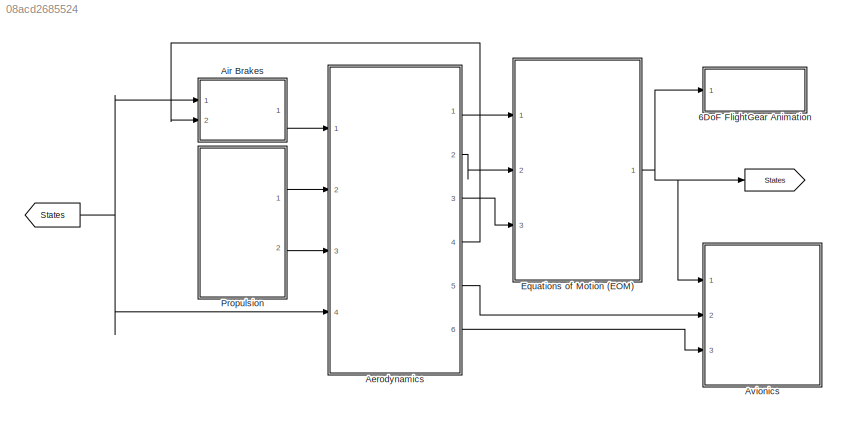
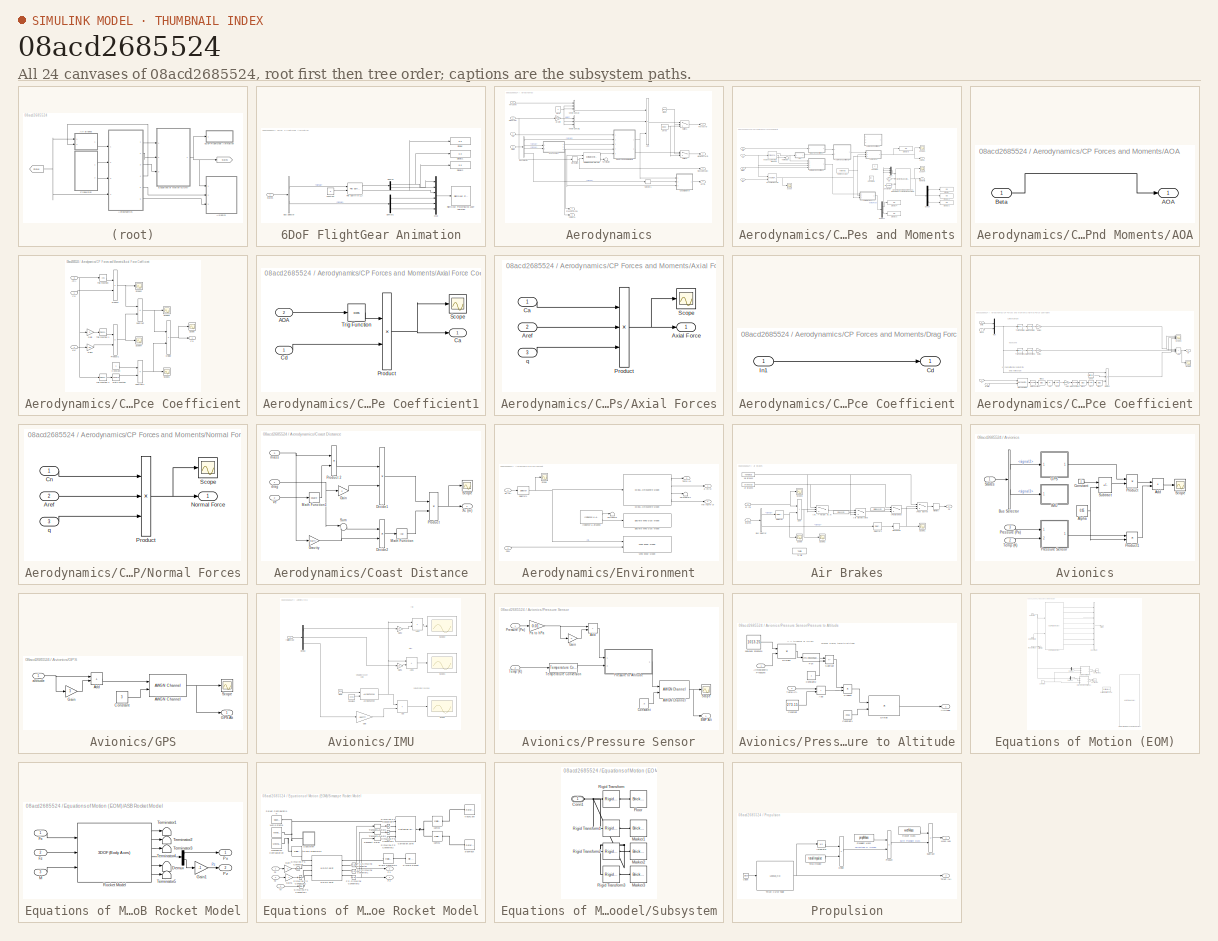
[diagram: thumbnail index - all 24 canvases of the model, root first then tree order]
MODEL slx_08acd2685524
KIND model
CONFIG AbsTol = auto
CONFIG EnableMultiTasking = on
CONFIG FixedStep = auto
CONFIG MaxStep = auto
CONFIG MinStep = auto
CONFIG RelTol = 1e-3
CONFIG SampleTimeConstraint = Unconstrained
CONFIG SolverName = ode45
CONFIG StartTime = 0.0
CONFIG StopTime = 100
WORKSPACE source: mxarray member
WORKSPACE bodyLength = 5
WORKSPACE brakesCd = 1
WORKSPACE brakesOn = 1
WORKSPACE dryCG = 1.9
WORKSPACE dryMass = 23
WORKSPACE finArea = 0.2
WORKSPACE finChordAngle = 0.5236
WORKSPACE finSpan = 0.4
WORKSPACE fullBrakesOn = 0
WORKSPACE gravity = 9.8067
WORKSPACE noseLength = 0.5
WORKSPACE propMass = 7.183
WORKSPACE refArea = 0.0182
WORKSPACE rocketCP = 1
WORKSPACE rocketDiam = 0.197
WORKSPACE targetAlt = 3048
WORKSPACE thrust = [0 2638.366 2528.97 3063.078 2426.009 2548.275 2599.755 2554.71 2644.801 2638.366 2561.145 2606.19 ... (27 elements, 27x1)]
WORKSPACE time = [0 0.045 0.067 0.084 0.124 0.186 0.231 0.298 0.371 0.534 0.979 1.142 ... (27 elements, 27x1)]
WORKSPACE totalImpulse = 10831
WORKSPACE vehicleCd = 0.8
WORKSPACE wetCG = 2.1
WORKSPACE wetMass = 30
BLOCK [Goto]  
  GotoTag = States
BLOCK [From]   
  GotoTag = States
BLOCK [SubSystem] 6DoF FlightGear Animation
  Ports = [1]
  RequestExecContextInheritance = off
BLOCK [BusSelector] 6DoF FlightGear Animation/Bus Selector
  OutputSignals = signal2,signal3
  Ports = [1, 2]
BLOCK [Constant] 6DoF FlightGear Animation/Constant
  Value = 0
BLOCK [Demux] 6DoF FlightGear Animation/Demux
  Outputs = 2
  Ports = [1, 2]
BLOCK [Demux] 6DoF FlightGear Animation/Demux1
  Outputs = 3
  Ports = [1, 3]
BLOCK [Display] 6DoF FlightGear Animation/Display
  Decimation = 1
  Ports = [1]
BLOCK [Display] 6DoF FlightGear Animation/Display1
  Decimation = 1
  Ports = [1]
BLOCK [Display] 6DoF FlightGear Animation/Display2
  Decimation = 1
  Ports = [1]
BLOCK [Reference] 6DoF FlightGear Animation/Flat Earth to LLA  REF=aerolibtransform2/Flat Earth to LLA
  Ports = [2, 2]
  SourceBlock = aerolibtransform2/Flat Earth to LLA
  SourceProductBaseCode = AE
  SourceType = Flat Earth to LLA
BLOCK [Reference] 6DoF FlightGear Animation/FlightGear Preconfigured 6DoF Animation  REF=aerolibfltsims/FlightGear
Preconfigured
6DoF Animation
  AttributesFormatString = Version Selected: %<xFlightGearVersion>
  Ports = [1]
  SourceBlock = aerolibfltsims/FlightGear\nPreconfigured\n6DoF Animation
  SourceProductBaseCode = AE
  SourceType = FlightGearQuick6DoFAnimation
BLOCK [Mux] 6DoF FlightGear Animation/Mux
  DisplayOption = bar
  Inputs = 6
  Ports = [6, 1]
BLOCK [Inport] 6DoF FlightGear Animation/States
BLOCK [SubSystem] Aerodynamics
  Ports = [4, 6]
  RequestExecContextInheritance = off
BLOCK [Sum] Aerodynamics/Add
  IconShape = rectangular
  Inputs = +--
  Ports = [3, 1]
BLOCK [BusSelector] Aerodynamics/Bus Selector
  OutputSignals = signal5,signal2,signal4,signal1
  Ports = [1, 4]
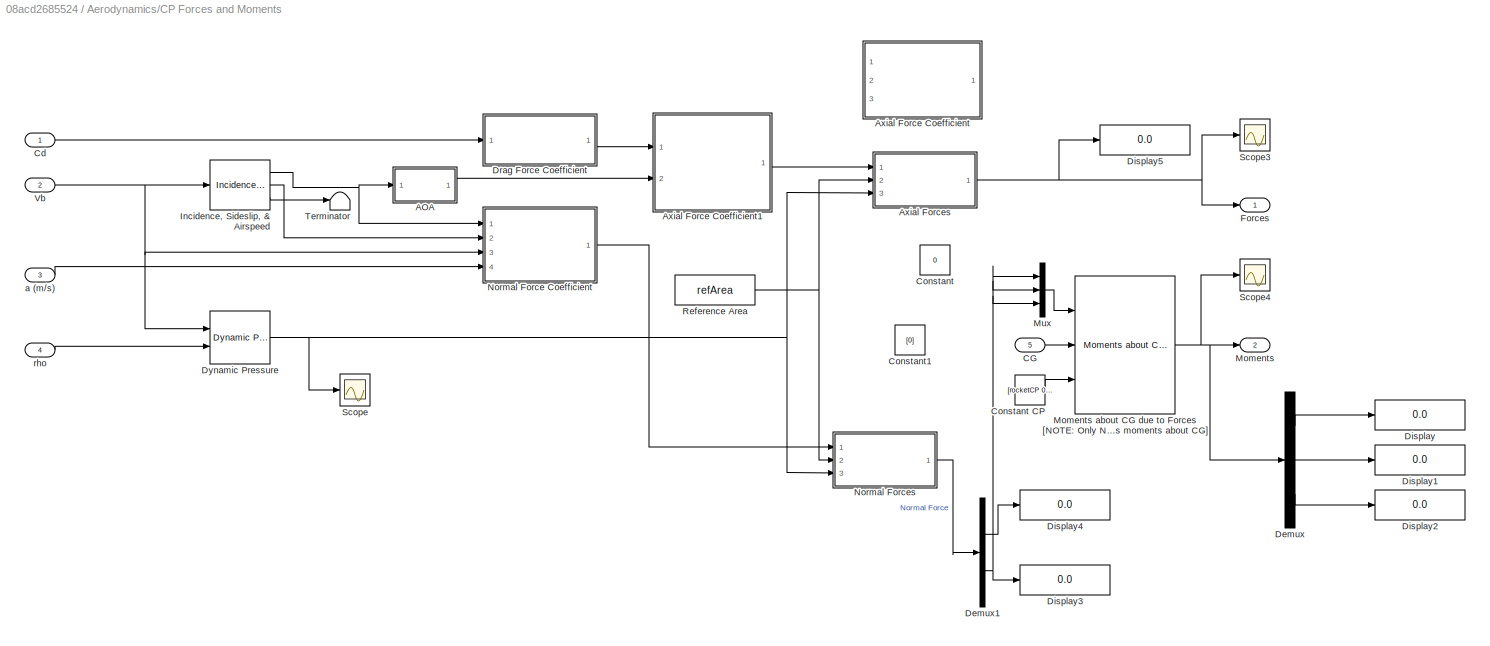
BLOCK [SubSystem] Aerodynamics/CP Forces and Moments
  Ports = [5, 2]
  RequestExecContextInheritance = off
BLOCK [SubSystem] Aerodynamics/CP Forces and Moments/AOA
  Ports = [1, 1]
  RequestExecContextInheritance = off
BLOCK [Outport] Aerodynamics/CP Forces and Moments/AOA/AOA
BLOCK [Inport] Aerodynamics/CP Forces and Moments/AOA/Beta
BLOCK [SubSystem] Aerodynamics/CP Forces and Moments/Axial Force Coefficient
  Commented = on
  Ports = [3, 1]
  RequestExecContextInheritance = off
BLOCK [Inport] Aerodynamics/CP Forces and Moments/Axial Force Coefficient/AOA
  Port = 3
BLOCK [Outport] Aerodynamics/CP Forces and Moments/Axial Force Coefficient/Ca
BLOCK [Inport] Aerodynamics/CP Forces and Moments/Axial Force Coefficient/Cd
BLOCK [Inport] Aerodynamics/CP Forces and Moments/Axial Force Coefficient/Cn
  Port = 2
BLOCK [Constant] Aerodynamics/CP Forces and Moments/Axial Force Coefficient/Constant
BLOCK [Product] Aerodynamics/CP Forces and Moments/Axial Force Coefficient/Divide
  Inputs = */
  Ports = [2, 1]
BLOCK [Gain] Aerodynamics/CP Forces and Moments/Axial Force Coefficient/Gain
  Gain = 2
BLOCK [Gain] Aerodynamics/CP Forces and Moments/Axial Force Coefficient/Gain1
  Gain = 0.5
BLOCK [Math] Aerodynamics/CP Forces and Moments/Axial Force Coefficient/Math Function
  Operator = square
  Ports = [1, 1]
  SignedPower = on
BLOCK [Product] Aerodynamics/CP Forces and Moments/Axial Force Coefficient/Product
  Ports = [2, 1]
BLOCK [Product] Aerodynamics/CP Forces and Moments/Axial Force Coefficient/Product1
  Ports = [2, 1]
BLOCK [Scope] Aerodynamics/CP Forces and Moments/Axial Force Coefficient/Scope
  Floating = off
  NumInputPorts = 1
  Ports = [1]
  ScopeSpecificationString = C++SS(StrPVP('Location','[188, 365, 512, 604]'),StrPVP('Open','off'),MxPVP('AxesTitles',54,'struct(''axes1'',''%<SignalLabel>'')'),MxPVP('ScopeGraphics',57,'struct(''FigureColor'',''[0.5 0.5 0.5]'',''AxesColor'',''[0 0 0]'',''AxesTickColor'',''[1 1 1]'',''LineColors'',''[1 1 0;1 0 1;0 1 1;1 0 0;0 1 0;0 0 1]'',''LineStyles'',''-|-|-|-|-|-'',''LineWidths'',''[0.5 0.5 0.5 0.5 0.5 0.5]'',''MarkerStyle...<+196ch>
BLOCK [Scope] Aerodynamics/CP Forces and Moments/Axial Force Coefficient/Scope1
  Floating = off
  NumInputPorts = 1
  Ports = [1]
  ScopeSpecificationString = C++SS(StrPVP('Location','[188, 365, 512, 604]'),StrPVP('Open','off'),MxPVP('AxesTitles',54,'struct(''axes1'',''%<SignalLabel>'')'),MxPVP('ScopeGraphics',57,'struct(''FigureColor'',''[0.5 0.5 0.5]'',''AxesColor'',''[0 0 0]'',''AxesTickColor'',''[1 1 1]'',''LineColors'',''[1 1 0;1 0 1;0 1 1;1 0 0;0 1 0;0 0 1]'',''LineStyles'',''-|-|-|-|-|-'',''LineWidths'',''[0.5 0.5 0.5 0.5 0.5 0.5]'',''MarkerStyle...<+197ch>  <repeated x7 — deduplicated; at blocks: Scope1, Scope2, Scope3, Scope4, Scope>
BLOCK [Scope] Aerodynamics/CP Forces and Moments/Axial Force Coefficient/Scope2
  Floating = off
  NumInputPorts = 1
  Ports = [1]
BLOCK [Scope] Aerodynamics/CP Forces and Moments/Axial Force Coefficient/Scope3
  Floating = off
  NumInputPorts = 1
  Ports = [1]
BLOCK [Scope] Aerodynamics/CP Forces and Moments/Axial Force Coefficient/Scope4
  Floating = off
  NumInputPorts = 1
  Ports = [1]
BLOCK [Sum] Aerodynamics/CP Forces and Moments/Axial Force Coefficient/Subtract
  IconShape = rectangular
  Inputs = +-
  Ports = [2, 1]
BLOCK [Sum] Aerodynamics/CP Forces and Moments/Axial Force Coefficient/Subtract1
  IconShape = rectangular
  Inputs = +-
  Ports = [2, 1]
BLOCK [Trigonometry] Aerodynamics/CP Forces and Moments/Axial Force Coefficient/Trig Function
  Operator = cos
  Ports = [1, 1]
BLOCK [Trigonometry] Aerodynamics/CP Forces and Moments/Axial Force Coefficient/Trig Function 1
  Ports = [1, 1]
BLOCK [Trigonometry] Aerodynamics/CP Forces and Moments/Axial Force Coefficient/Trig Function 2
  Ports = [1, 1]
BLOCK [SubSystem] Aerodynamics/CP Forces and Moments/Axial Force Coefficient1
  Ports = [2, 1]
  RequestExecContextInheritance = off
BLOCK [Inport] Aerodynamics/CP Forces and Moments/Axial Force Coefficient1/AOA
  Port = 2
BLOCK [Outport] Aerodynamics/CP Forces and Moments/Axial Force Coefficient1/Ca
BLOCK [Inport] Aerodynamics/CP Forces and Moments/Axial Force Coefficient1/Cd
BLOCK [Product] Aerodynamics/CP Forces and Moments/Axial Force Coefficient1/Product
  Ports = [2, 1]
BLOCK [Scope] Aerodynamics/CP Forces and Moments/Axial Force Coefficient1/Scope
  Floating = off
  NumInputPorts = 1
  Ports = [1]
BLOCK [Trigonometry] Aerodynamics/CP Forces and Moments/Axial Force Coefficient1/Trig Function
  Operator = cos
  Ports = [1, 1]
BLOCK [SubSystem] Aerodynamics/CP Forces and Moments/Axial Forces
  Ports = [3, 1]
  RequestExecContextInheritance = off
BLOCK [Inport] Aerodynamics/CP Forces and Moments/Axial Forces/Aref
  Port = 2
BLOCK [Outport] Aerodynamics/CP Forces and Moments/Axial Forces/Axial Force
BLOCK [Inport] Aerodynamics/CP Forces and Moments/Axial Forces/Ca
BLOCK [Product] Aerodynamics/CP Forces and Moments/Axial Forces/Product
  Inputs = 3
  Ports = [3, 1]
BLOCK [Scope] Aerodynamics/CP Forces and Moments/Axial Forces/Scope
  Floating = off
  NumInputPorts = 1
  Ports = [1]
  ScopeSpecificationString = C++SS(StrPVP('Location','[188, 365, 512, 604]'),StrPVP('Open','off'),MxPVP('AxesTitles',54,'struct(''axes1'',''%<SignalLabel>'')'),MxPVP('ScopeGraphics',57,'struct(''FigureColor'',''[0.5 0.5 0.5]'',''AxesColor'',''[0 0 0]'',''AxesTickColor'',''[1 1 1]'',''LineColors'',''[1 1 0;1 0 1;0 1 1;1 0 0;0 1 0;0 0 1]'',''LineStyles'',''-|-|-|-|-|-'',''LineWidths'',''[0.5 0.5 0.5 0.5 0.5 0.5]'',''MarkerStyle...<+268ch>
BLOCK [Inport] Aerodynamics/CP Forces and Moments/Axial Forces/q 
  Port = 3
BLOCK [Inport] Aerodynamics/CP Forces and Moments/CG
  Port = 5
BLOCK [Inport] Aerodynamics/CP Forces and Moments/Cd
BLOCK [Constant] Aerodynamics/CP Forces and Moments/Constant
  Value = 0
BLOCK [Constant] Aerodynamics/CP Forces and Moments/Constant CP
  Value = [rocketCP 0 0]
BLOCK [Constant] Aerodynamics/CP Forces and Moments/Constant1
  Value = [0]
BLOCK [Demux] Aerodynamics/CP Forces and Moments/Demux
  Outputs = 3
  Ports = [1, 3]
BLOCK [Demux] Aerodynamics/CP Forces and Moments/Demux1
  Outputs = 2
  Ports = [1, 2]
BLOCK [Display] Aerodynamics/CP Forces and Moments/Display
  Decimation = 1
  Ports = [1]
BLOCK [Display] Aerodynamics/CP Forces and Moments/Display1
  Decimation = 1
  Ports = [1]
BLOCK [Display] Aerodynamics/CP Forces and Moments/Display2
  Decimation = 1
  Ports = [1]
BLOCK [Display] Aerodynamics/CP Forces and Moments/Display3
  Decimation = 1
  Ports = [1]
BLOCK [Display] Aerodynamics/CP Forces and Moments/Display4
  Decimation = 1
  Ports = [1]
BLOCK [Display] Aerodynamics/CP Forces and Moments/Display5
  Decimation = 1
  Ports = [1]
BLOCK [SubSystem] Aerodynamics/CP Forces and Moments/Drag Force Coefficient
  Ports = [1, 1]
  RequestExecContextInheritance = off
BLOCK [Outport] Aerodynamics/CP Forces and Moments/Drag Force Coefficient/Cd
BLOCK [Inport] Aerodynamics/CP Forces and Moments/Drag Force Coefficient/In1
BLOCK [Reference] Aerodynamics/CP Forces and Moments/Dynamic Pressure  REF=aerolibasang/Dynamic Pressure
  Ports = [2, 1]
  SourceBlock = aerolibasang/Dynamic Pressure
  SourceProductBaseCode = AE
  SourceType = Dynamic Pressure
BLOCK [Outport] Aerodynamics/CP Forces and Moments/Forces
BLOCK [Reference] Aerodynamics/CP Forces and Moments/Incidence, Sideslip, & Airspeed  REF=aerolibasang/Incidence, Sideslip,
& Airspeed
  Ports = [1, 3]
  SourceBlock = aerolibasang/Incidence, Sideslip,\n& Airspeed
  SourceProductBaseCode = AE
  SourceType = Incidence,Sideslip,&Airspeed
BLOCK [Outport] Aerodynamics/CP Forces and Moments/Moments
  Port = 2
BLOCK [Reference] Aerodynamics/CP Forces and Moments/Moments about CG due to Forces [NOTE: Only Normal Force applys moments about CG]  REF=aerolibbdyn/Moments about CG 
due to Forces
  Ports = [3, 1]
  SourceBlock = aerolibbdyn/Moments about CG \ndue to Forces
  SourceProductBaseCode = AE
  SourceType = Moments About CG Due To Forces
BLOCK [Mux] Aerodynamics/CP Forces and Moments/Mux
  DisplayOption = bar
  Inputs = 3
  Ports = [3, 1]
BLOCK [SubSystem] Aerodynamics/CP Forces and Moments/Normal Force Coefficient
  Ports = [4, 1]
  RequestExecContextInheritance = off
BLOCK [Abs] Aerodynamics/CP Forces and Moments/Normal Force Coefficient/Abs
  SaturateOnIntegerOverflow = off
BLOCK [Sum] Aerodynamics/CP Forces and Moments/Normal Force Coefficient/Add
  IconShape = rectangular
  Inputs = +++
  Ports = [3, 1]
BLOCK [Bias] Aerodynamics/CP Forces and Moments/Normal Force Coefficient/Bias1
  Bias = 1
  SaturateOnIntegerOverflow = off
BLOCK [Bias] Aerodynamics/CP Forces and Moments/Normal Force Coefficient/Bias2
  Bias = -1
  SaturateOnIntegerOverflow = off
BLOCK [Bias] Aerodynamics/CP Forces and Moments/Normal Force Coefficient/Bias3
  Bias = 1
  SaturateOnIntegerOverflow = off
BLOCK [Outport] Aerodynamics/CP Forces and Moments/Normal Force Coefficient/Cn
BLOCK [Constant] Aerodynamics/CP Forces and Moments/Normal Force Coefficient/Const
  Value = 2*pi*finSpan^2
BLOCK [Product] Aerodynamics/CP Forces and Moments/Normal Force Coefficient/Divide2
  Inputs = **/
  Ports = [3, 1]
BLOCK [Reference] Aerodynamics/CP Forces and Moments/Normal Force Coefficient/Mach Number  REF=aerolibasang/Mach Number
  Ports = [2, 1]
  SourceBlock = aerolibasang/Mach Number
  SourceProductBaseCode = AE
  SourceType = Mach Number
BLOCK [Math] Aerodynamics/CP Forces and Moments/Normal Force Coefficient/Math Function
  Operator = square
  Ports = [1, 1]
  SignedPower = on
BLOCK [Math] Aerodynamics/CP Forces and Moments/Normal Force Coefficient/Math Function1
  Operator = square
  Ports = [1, 1]
  SignedPower = on
BLOCK [Math] Aerodynamics/CP Forces and Moments/Normal Force Coefficient/Math Function2
  Operator = square
  Ports = [1, 1]
  SignedPower = on
BLOCK [Math] Aerodynamics/CP Forces and Moments/Normal Force Coefficient/Math Function3
  Operator = square
  Ports = [1, 1]
  SignedPower = on
BLOCK [Mux] Aerodynamics/CP Forces and Moments/Normal Force Coefficient/Mux
  DisplayOption = bar
  Inputs = 2
  Ports = [2, 1]
BLOCK [Scope] Aerodynamics/CP Forces and Moments/Normal Force Coefficient/Scope
  Floating = off
  NumInputPorts = 1
  Ports = [1]
  ScopeSpecificationString = C++SS(StrPVP('Location','[656, 368, 980, 607]'),StrPVP('Open','off'),StrPVP('ZoomMode','xonly'),MxPVP('AxesTitles',54,'struct(''axes1'',''%<SignalLabel>'')'),MxPVP('ScopeGraphics',57,'struct(''FigureColor'',''[0.5 0.5 0.5]'',''AxesColor'',''[0 0 0]'',''AxesTickColor'',''[1 1 1]'',''LineColors'',''[1 1 0;1 0 1;0 1 1;1 0 0;0 1 0;0 0 1]'',''LineStyles'',''-|-|-|-|-|-'',''LineWidths'',''[0.5 0.5 0.5 0...<+223ch>  <repeated x3 — deduplicated; at blocks: Scope, Scope3, Scope4>
BLOCK [Scope] Aerodynamics/CP Forces and Moments/Normal Force Coefficient/Scope2
  Floating = off
  NumInputPorts = 3
  Ports = [3]
  ScopeSpecificationString = C++SS(StrPVP('Location','[656, 368, 980, 607]'),StrPVP('Open','off'),StrPVP('ZoomMode','xonly'),MxPVP('AxesTitles',54,'struct(''axes1'',''%<SignalLabel>'',''axes2'',''%<SignalLabel>'',''axes3'',''%<SignalLabel>'')'),MxPVP('ScopeGraphics',57,'struct(''FigureColor'',''[0.5 0.5 0.5]'',''AxesColor'',''[0 0 0]'',''AxesTickColor'',''[1 1 1]'',''LineColors'',''[1 1 0;1 0 1;0 1 1;1 0 0;0 1 0;0 0 1]'',''Li...<+330ch>
BLOCK [Sqrt] Aerodynamics/CP Forces and Moments/Normal Force Coefficient/Sqrt
BLOCK [Sqrt] Aerodynamics/CP Forces and Moments/Normal Force Coefficient/Sqrt1
BLOCK [Trigonometry] Aerodynamics/CP Forces and Moments/Normal Force Coefficient/Trig Function
  Ports = [1, 1]
BLOCK [Trigonometry] Aerodynamics/CP Forces and Moments/Normal Force Coefficient/Trig Function1
  Ports = [1, 1]
BLOCK [Inport] Aerodynamics/CP Forces and Moments/Normal Force Coefficient/V
  Port = 3
BLOCK [Inport] Aerodynamics/CP Forces and Moments/Normal Force Coefficient/a (m//s)
  Port = 4
BLOCK [Inport] Aerodynamics/CP Forces and Moments/Normal Force Coefficient/alpha
BLOCK [Inport] Aerodynamics/CP Forces and Moments/Normal Force Coefficient/beta
  Port = 2
BLOCK [Gain] Aerodynamics/CP Forces and Moments/Normal Force Coefficient/gain
  Gain = finSpan^2/(finArea*cos(finChordAngle))
BLOCK [Gain] Aerodynamics/CP Forces and Moments/Normal Force Coefficient/gain1
  Gain = (noseLength*rocketDiam*1.1)
BLOCK [Gain] Aerodynamics/CP Forces and Moments/Normal Force Coefficient/gain2
  Gain = (bodyLength*rocketDiam*1.1)
BLOCK [SubSystem] Aerodynamics/CP Forces and Moments/Normal Forces
  Ports = [3, 1]
  RequestExecContextInheritance = off
BLOCK [Inport] Aerodynamics/CP Forces and Moments/Normal Forces/Aref
  Port = 2
BLOCK [Inport] Aerodynamics/CP Forces and Moments/Normal Forces/Cn
BLOCK [Outport] Aerodynamics/CP Forces and Moments/Normal Forces/Normal Force
BLOCK [Product] Aerodynamics/CP Forces and Moments/Normal Forces/Product
  Inputs = 3
  Ports = [3, 1]
BLOCK [Scope] Aerodynamics/CP Forces and Moments/Normal Forces/Scope
  Floating = off
  NumInputPorts = 1
  Ports = [1]
  ScopeSpecificationString = C++SS(StrPVP('Location','[188, 365, 512, 604]'),StrPVP('Open','off'),MxPVP('AxesTitles',54,'struct(''axes1'',''%<SignalLabel>'')'),MxPVP('ScopeGraphics',57,'struct(''FigureColor'',''[0.5 0.5 0.5]'',''AxesColor'',''[0 0 0]'',''AxesTickColor'',''[1 1 1]'',''LineColors'',''[1 1 0;1 0 1;0 1 1;1 0 0;0 1 0;0 0 1]'',''LineStyles'',''-|-|-|-|-|-'',''LineWidths'',''[0.5 0.5 0.5 0.5 0.5 0.5]'',''MarkerStyle...<+268ch>
BLOCK [Inport] Aerodynamics/CP Forces and Moments/Normal Forces/q 
  Port = 3
BLOCK [Constant] Aerodynamics/CP Forces and Moments/Reference Area
  Value = refArea
BLOCK [Scope] Aerodynamics/CP Forces and Moments/Scope
  Floating = off
  NumInputPorts = 1
  Ports = [1]
  ScopeSpecificationString = C++SS(StrPVP('Location','[188, 365, 512, 604]'),StrPVP('Open','off'),MxPVP('AxesTitles',54,'struct(''axes1'',''%<SignalLabel>'')'),MxPVP('ScopeGraphics',57,'struct(''FigureColor'',''[0.5 0.5 0.5]'',''AxesColor'',''[0 0 0]'',''AxesTickColor'',''[1 1 1]'',''LineColors'',''[1 1 0;1 0 1;0 1 1;1 0 0;0 1 0;0 0 1]'',''LineStyles'',''-|-|-|-|-|-'',''LineWidths'',''[0.5 0.5 0.5 0.5 0.5 0.5]'',''MarkerStyle...<+196ch>
BLOCK [Scope] Aerodynamics/CP Forces and Moments/Scope3
  Floating = off
  NumInputPorts = 1
  Ports = [1]
BLOCK [Scope] Aerodynamics/CP Forces and Moments/Scope4
  Floating = off
  NumInputPorts = 1
  Ports = [1]
BLOCK [Terminator] Aerodynamics/CP Forces and Moments/Terminator
BLOCK [Inport] Aerodynamics/CP Forces and Moments/Vb
  Port = 2
BLOCK [Inport] Aerodynamics/CP Forces and Moments/a (m//s)
  Port = 3
BLOCK [Inport] Aerodynamics/CP Forces and Moments/rho
  Port = 4
BLOCK [Inport] Aerodynamics/Cd
BLOCK [Clock] Aerodynamics/Clock
BLOCK [SubSystem] Aerodynamics/Coast Distance
  Ports = [3, 1]
  RequestExecContextInheritance = off
BLOCK [Product] Aerodynamics/Coast Distance/Divide1
  Inputs = */
  Ports = [2, 1]
BLOCK [Product] Aerodynamics/Coast Distance/Divide2
  Inputs = */
  Ports = [2, 1]
BLOCK [Gain] Aerodynamics/Coast Distance/Gain
  Gain = 2
BLOCK [Gain] Aerodynamics/Coast Distance/Gravity
  Gain = gravity
BLOCK [Math] Aerodynamics/Coast Distance/Math Function
  Operator = log
  Ports = [1, 1]
  SignedPower = on
BLOCK [Math] Aerodynamics/Coast Distance/Math Function1
  Operator = square
  Ports = [1, 1]
  SignedPower = on
BLOCK [Product] Aerodynamics/Coast Distance/Product
  Ports = [2, 1]
BLOCK [Product] Aerodynamics/Coast Distance/Product 2
  Inputs = **
  Ports = [2, 1]
BLOCK [Scope] Aerodynamics/Coast Distance/Scope
  Floating = off
  NumInputPorts = 1
  Ports = [1]
BLOCK [Sum] Aerodynamics/Coast Distance/Sum
  Inputs = |++
  Ports = [2, 1]
BLOCK [Inport] Aerodynamics/Coast Distance/Ve
  Port = 2
BLOCK [Outport] Aerodynamics/Coast Distance/Xc (m)
BLOCK [Inport] Aerodynamics/Coast Distance/drag
BLOCK [Inport] Aerodynamics/Coast Distance/mass
  Port = 3
BLOCK [Derivative] Aerodynamics/Derivative
BLOCK [SubSystem] Aerodynamics/Environment
  Ports = [2, 3]
  RequestExecContextInheritance = off
BLOCK [Reference] Aerodynamics/Environment/COESA Atmosphere Model  REF=aerolibatmos2/COESA Atmosphere Model
  Ports = [1, 4]
  SourceBlock = aerolibatmos2/COESA Atmosphere Model
  SourceProductBaseCode = AE
  SourceType = Atmosphere Model
BLOCK [Inport] Aerodynamics/Environment/DCM
  Port = 2
BLOCK [Reference] Aerodynamics/Environment/Discrete Wind Gust Model  REF=aerolibwind2/Discrete Wind Gust Model
  Commented = on
  Ports = [1, 1]
  SourceBlock = aerolibwind2/Discrete Wind Gust Model
  SourceProductBaseCode = AE
  SourceType = Discrete Wind Gust Model
BLOCK [Reference] Aerodynamics/Environment/Incidence & Airspeed  REF=aerolibasang/Incidence 
& Airspeed
  Commented = on
  Ports = [1, 2]
  SourceBlock = aerolibasang/Incidence \n& Airspeed
  SourceProductBaseCode = AE
  SourceType = Incidence&Airspeed
BLOCK [Scope] Aerodynamics/Environment/Scope
  Floating = off
  NumInputPorts = 1
  Ports = [1]
BLOCK [Selector] Aerodynamics/Environment/Selector1
  IndexOptions = Index vector (dialog)
  Indices = 3
  InputPortWidth = 3
  OutputSizes = 1
  Ports = [1, 1]
BLOCK [Outport] Aerodynamics/Environment/Temp (K)
  Port = 3
BLOCK [Terminator] Aerodynamics/Environment/Terminator
  Commented = on
BLOCK [Terminator] Aerodynamics/Environment/Terminator1
BLOCK [Reference] Aerodynamics/Environment/Wind Shear Model  REF=aerolibwind2/Wind Shear Model
  Commented = on
  Ports = [2, 1]
  SourceBlock = aerolibwind2/Wind Shear Model
  SourceProductBaseCode = AE
  SourceType = Wind Shear Model
BLOCK [Inport] Aerodynamics/Environment/Xe (m)
BLOCK [Outport] Aerodynamics/Environment/a (m//s)
BLOCK [Outport] Aerodynamics/Environment/rho (kg//m^3)
  Port = 2
BLOCK [Reference] Aerodynamics/Estimate Center of Gravity  REF=aerolibbdyn/Estimate
Center of Gravity
  Ports = [2, 2]
  SourceBlock = aerolibbdyn/Estimate\nCenter of Gravity
  SourceProductBaseCode = AE
  SourceType = Estimate Center of Gravity
BLOCK [Outport] Aerodynamics/Forces (N)
BLOCK [Inport] Aerodynamics/Mass (kg)
  Port = 2
BLOCK [Outport] Aerodynamics/Moments (N*m)
  Port = 2
BLOCK [Outport] Aerodynamics/Pressure (Pa)
  Port = 6
BLOCK [Selector] Aerodynamics/Selector1
  IndexOptions = Index vector (dialog)
  Indices = 1
  InputPortWidth = 3
  OutputSizes = 1
  Ports = [1, 1]
BLOCK [Inport] Aerodynamics/States
  Port = 4
BLOCK [Switch] Aerodynamics/Switch1
  Criteria = u2 > Threshold
  InputSameDT = off
  SaturateOnIntegerOverflow = off
  Threshold = 0.0
BLOCK [Switch] Aerodynamics/Switch2
  Criteria = u2 > Threshold
  InputSameDT = off
  SaturateOnIntegerOverflow = off
  Threshold = 0.0
BLOCK [Outport] Aerodynamics/Temp (K)
  Port = 5
BLOCK [Terminator] Aerodynamics/Terminator
BLOCK [Inport] Aerodynamics/Thrust (N)
  Port = 3
BLOCK [Concatenate] Aerodynamics/Vector Concat
  NumInputs = 3
  Ports = [3, 1]
BLOCK [Concatenate] Aerodynamics/Vector Concat1
  NumInputs = 3
  Ports = [3, 1]
BLOCK [Outport] Aerodynamics/Xc (m)
  Port = 4
BLOCK [Gain] Aerodynamics/gravity
  Gain = gravity
BLOCK [Outport] Aerodynamics/massDot (kg//s)
  Port = 3
BLOCK [Constant] Aerodynamics/zero 
  Value = 0
BLOCK [Constant] Aerodynamics/zeros 
  Value = [0 0 0]
BLOCK [SubSystem] Air Brakes
  NameLocation = top
  Ports = [2, 1]
  RequestExecContextInheritance = off
BLOCK [Constant] Air Brakes/ 
  Value = fullBrakesOn
BLOCK [Constant] Air Brakes/  
  Value = brakesOn
BLOCK [Constant] Air Brakes/Air Brakes
  Value = brakesCd
BLOCK [BusSelector] Air Brakes/Bus Selector
  OutputSignals = signal2,signal1
  Ports = [1, 2]
BLOCK [Outport] Air Brakes/Cd 
BLOCK [Derivative] Air Brakes/Derivative
BLOCK [Memory] Air Brakes/Memory
BLOCK [Constant] Air Brakes/No Brakes
  Value = vehicleCd
BLOCK [Scope] Air Brakes/Scope
  Floating = off
  NumInputPorts = 1
  Ports = [1]
  ScopeSpecificationString = C++SS(StrPVP('Location','[10, 69, 1924, 1087]'),StrPVP('Open','off'),MxPVP('AxesTitles',54,'struct(''axes1'',''%<SignalLabel>'')'),MxPVP('ScopeGraphics',57,'struct(''FigureColor'',''[1 1 1]'',''AxesColor'',''[1 1 1]'',''AxesTickColor'',''[0 0 0]'',''LineColors'',''[0 0 1;1 0 1;0 1 1;1 0 0;0 1 0;0 0 1]'',''LineStyles'',''-|-|-|-|-|-'',''LineWidths'',''[0.5 0.5 0.5 0.5 0.5 0.5]'',''MarkerStyles'',''...<+301ch>
BLOCK [Scope] Air Brakes/Scope1
  Floating = off
  NumInputPorts = 1
  Ports = [1]
  ScopeSpecificationString = C++SS(StrPVP('Location','[10, 69, 1924, 1087]'),StrPVP('Open','off'),MxPVP('AxesTitles',54,'struct(''axes1'',''%<SignalLabel>'')'),MxPVP('ScopeGraphics',57,'struct(''FigureColor'',''[1 1 1]'',''AxesColor'',''[1 1 1]'',''AxesTickColor'',''[0 0 0]'',''LineColors'',''[0 0 1;1 0 1;0 1 1;1 0 0;0 1 0;0 0 1]'',''LineStyles'',''-|-|-|-|-|-'',''LineWidths'',''[0.5 0.5 0.5 0.5 0.5 0.5]'',''MarkerStyles'',''...<+256ch>
BLOCK [Scope] Air Brakes/Scope2
  Floating = off
  NumInputPorts = 1
  Ports = [1]
  ScopeSpecificationString = C++SS(StrPVP('Location','[10, 69, 1924, 1087]'),StrPVP('Open','off'),MxPVP('AxesTitles',54,'struct(''axes1'',''%<SignalLabel>'')'),MxPVP('ScopeGraphics',57,'struct(''FigureColor'',''[1 1 1]'',''AxesColor'',''[1 1 1]'',''AxesTickColor'',''[0 0 0]'',''LineColors'',''[0 0 1;1 0 1;0 1 1;1 0 0;0 1 0;0 0 1]'',''LineStyles'',''-|-|-|-|-|-'',''LineWidths'',''[0.5 0.5 0.5 0.5 0.5 0.5]'',''MarkerStyles'',''...<+256ch>
BLOCK [Scope] Air Brakes/Scope3
  Floating = off
  NumInputPorts = 1
  Ports = [1]
  ScopeSpecificationString = C++SS(StrPVP('Location','[1, 49, 1921, 1039]'),StrPVP('Open','off'),MxPVP('AxesTitles',54,'struct(''axes1'',''%<SignalLabel>'')'),MxPVP('ScopeGraphics',57,'struct(''FigureColor'',''[1 1 1]'',''AxesColor'',''[1 1 1]'',''AxesTickColor'',''[0 0 0]'',''LineColors'',''[0 0 1;1 0 1;0 1 1;1 0 0;0 1 0;0 0 1]'',''LineStyles'',''-|-|-|-|-|-'',''LineWidths'',''[0.5 0.5 0.5 0.5 0.5 0.5]'',''MarkerStyles'',''n...<+256ch>
BLOCK [Selector] Air Brakes/Selector 
  IndexOptions = Index vector (dialog)
  Indices = 1
  InputPortWidth = 3
  OutputSizes = 1
  Ports = [1, 1]
BLOCK [Selector] Air Brakes/Selector1
  IndexOptions = Index vector (dialog)
  Indices = 1
  InputPortWidth = 3
  OutputSizes = 1
  Ports = [1, 1]
BLOCK [Inport] Air Brakes/States
BLOCK [Sum] Air Brakes/Sum
  IconShape = rectangular
  Ports = [2, 1]
BLOCK [ToFile] Air Brakes/To File
  Commented = on
  Filename = altitude.mat
  Ports = [1]
  SaveFormat = Timeseries
BLOCK [Inport] Air Brakes/Xc (m)
  Port = 2
BLOCK [Switch] Air Brakes/[Air Brakes On?]
  Criteria = u2 > Threshold
  Description = [Air Brakes On?]
  InputSameDT = off
  SaturateOnIntegerOverflow = off
BLOCK [Switch] Air Brakes/[Alt. > Target Alt.?]
  Criteria = u2 > Threshold
  InputSameDT = off
  SaturateOnIntegerOverflow = off
  Threshold = targetAlt
BLOCK [Switch] Air Brakes/[Full Brake?]
  Criteria = u2 > Threshold
  InputSameDT = off
  SaturateOnIntegerOverflow = off
BLOCK [Switch] Air Brakes/[Post Burn?]
  Criteria = u2 > Threshold
  InputSameDT = off
  SaturateOnIntegerOverflow = off
BLOCK [SubSystem] Avionics
  Ports = [3]
  RequestExecContextInheritance = off
BLOCK [Sum] Avionics/Add
  IconShape = rectangular
  Ports = [2, 1]
BLOCK [Constant] Avionics/Alpha
  Value = 0.95
BLOCK [BusSelector] Avionics/Bus Selector
  OutputSignals = signal2,signal3
  Ports = [1, 2]
BLOCK [Constant] Avionics/Constant
BLOCK [SubSystem] Avionics/GPS
  Ports = [1, 1]
  RequestExecContextInheritance = off
BLOCK [Reference] Avionics/GPS/AWGN Channel  REF=commchan3/AWGN
Channel
  Ports = [2, 1]
  SourceBlock = commchan3/AWGN\nChannel
  SourceProductBaseCode = CM
  SourceType = AWGN Channel
  UserDataPersistent = on
BLOCK [Sum] Avionics/GPS/Add
  IconShape = rectangular
  Ports = [2, 1]
BLOCK [Constant] Avionics/GPS/Constant
  Value = 3
BLOCK [Outport] Avionics/GPS/GPS Alt
BLOCK [Gain] Avionics/GPS/Gain
  Gain = 3
BLOCK [Scope] Avionics/GPS/Scope
  Floating = off
  NumInputPorts = 1
  Ports = [1]
  ScopeSpecificationString = Simulink.scopes.TimeScopeBlockCfg('CurrentConfiguration', extmgr.ConfigurationSet(extmgr.Configuration('Core','General UI',true),extmgr.Configuration('Core','Source UI',true),extmgr.Configuration('Sources','WiredSimulink',true,'DataLoggingVariableName','ScopeData23','DataLoggingLimitDataPoints',true,'DataLoggingSaveFormat','Array','DataLoggingDecimation','1','DataLoggingDecimateData',true),extmgr....<+1745ch>
BLOCK [Inport] Avionics/GPS/altitude
BLOCK [SubSystem] Avionics/IMU
  Ports = [1]
  RequestExecContextInheritance = off
BLOCK [Reference] Avionics/IMU/AWGN Channel  REF=commchan3/AWGN
Channel
  Ports = [2, 1]
  SourceBlock = commchan3/AWGN\nChannel
  SourceProductBaseCode = CM
  SourceType = AWGN Channel
  UserDataPersistent = on
BLOCK [Sum] Avionics/IMU/Add
  IconShape = rectangular
  Ports = [2, 1]
BLOCK [Sum] Avionics/IMU/Add1
  IconShape = rectangular
  Ports = [2, 1]
BLOCK [Sum] Avionics/IMU/Add2
  IconShape = rectangular
  Ports = [2, 1]
BLOCK [Clock] Avionics/IMU/Clock
BLOCK [Constant] Avionics/IMU/Constant
  Value = .0035
BLOCK [Demux] Avionics/IMU/Demux
  Outputs = 3
  Ports = [1, 3]
BLOCK [Gain] Avionics/IMU/Gain
  Gain = .002777
BLOCK [Gain] Avionics/IMU/Gain1
  Gain = 1.0
BLOCK [Gain] Avionics/IMU/Gain2
  Gain = 1.0
BLOCK [Scope] Avionics/IMU/Scope
  Floating = off
  NumInputPorts = 1
  Ports = [1]
  ScopeSpecificationString = Simulink.scopes.TimeScopeBlockCfg('CurrentConfiguration', extmgr.ConfigurationSet(extmgr.Configuration('Core','General UI',true),extmgr.Configuration('Core','Source UI',true),extmgr.Configuration('Sources','WiredSimulink',true,'DataLoggingVariableName','ScopeData24','DataLoggingLimitDataPoints',true,'DataLoggingSaveFormat','Array','DataLoggingDecimation','1','DataLoggingDecimateData',true),extmgr....<+1691ch>
BLOCK [Scope] Avionics/IMU/Scope1
  Floating = off
  NumInputPorts = 1
  Ports = [1]
  ScopeSpecificationString = Simulink.scopes.TimeScopeBlockCfg('CurrentConfiguration', extmgr.ConfigurationSet(extmgr.Configuration('Core','General UI',true),extmgr.Configuration('Core','Source UI',true),extmgr.Configuration('Sources','WiredSimulink',true,'DataLoggingVariableName','ScopeData25','DataLoggingLimitDataPoints',true,'DataLoggingSaveFormat','Array','DataLoggingDecimation','1','DataLoggingDecimateData',true),extmgr....<+1692ch>
BLOCK [Scope] Avionics/IMU/Scope2
  Floating = off
  NumInputPorts = 1
  Ports = [1]
  ScopeSpecificationString = Simulink.scopes.TimeScopeBlockCfg('CurrentConfiguration', extmgr.ConfigurationSet(extmgr.Configuration('Core','General UI',true),extmgr.Configuration('Core','Source UI',true),extmgr.Configuration('Sources','WiredSimulink',true,'DataLoggingVariableName','ScopeData26','DataLoggingLimitDataPoints',true,'DataLoggingSaveFormat','Array','DataLoggingDecimation','1','DataLoggingDecimateData',true),extmgr....<+1693ch>
BLOCK [Inport] Avionics/IMU/roll, pitch, yaw
BLOCK [Inport] Avionics/Pressure (Pa)
  Port = 3
BLOCK [SubSystem] Avionics/Pressure Sensor
  Ports = [2, 1]
  RequestExecContextInheritance = off
BLOCK [Reference] Avionics/Pressure Sensor/AWGN Channel  REF=commchan3/AWGN
Channel
  Ports = [2, 1]
  SourceBlock = commchan3/AWGN\nChannel
  SourceProductBaseCode = CM
  SourceType = AWGN Channel
  UserDataPersistent = on
BLOCK [Sum] Avionics/Pressure Sensor/Add
  IconShape = rectangular
  Ports = [2, 1]
BLOCK [Outport] Avionics/Pressure Sensor/BMP Alt
BLOCK [Constant] Avionics/Pressure Sensor/Constant
  Value = .5
BLOCK [Gain] Avionics/Pressure Sensor/Gain
BLOCK [Gain] Avionics/Pressure Sensor/Pa to hPa
  Gain = 0.01
BLOCK [Inport] Avionics/Pressure Sensor/Pressure (Pa)
BLOCK [SubSystem] Avionics/Pressure Sensor/Pressure to Altitude
  Ports = [2, 1]
  RequestExecContextInheritance = off
BLOCK [Sum] Avionics/Pressure Sensor/Pressure to Altitude/Add
  IconShape = rectangular
  Ports = [2, 1]
BLOCK [Outport] Avionics/Pressure Sensor/Pressure to Altitude/Altitude
BLOCK [Inport] Avionics/Pressure Sensor/Pressure to Altitude/Atmostpheric Pressure
BLOCK [Constant] Avionics/Pressure Sensor/Pressure to Altitude/Constant
  Value = 273.15
BLOCK [Constant] Avionics/Pressure Sensor/Pressure to Altitude/Constant1
  Value = .0065
BLOCK [Constant] Avionics/Pressure Sensor/Pressure to Altitude/Constant2
BLOCK [Product] Avionics/Pressure Sensor/Pressure to Altitude/Divide
  Inputs = */
  Ports = [2, 1]
BLOCK [Product] Avionics/Pressure Sensor/Pressure to Altitude/Divide1
  Inputs = */
  Ports = [2, 1]
BLOCK [Fcn] Avionics/Pressure Sensor/Pressure to Altitude/Fcn
  Expr = u^0.19022256039
BLOCK [Product] Avionics/Pressure Sensor/Pressure to Altitude/Product
  Ports = [2, 1]
BLOCK [Sum] Avionics/Pressure Sensor/Pressure to Altitude/Subtract
  IconShape = rectangular
  Inputs = +-
  Ports = [2, 1]
BLOCK [Inport] Avionics/Pressure Sensor/Pressure to Altitude/Temp (C) 
  Port = 2
BLOCK [Constant] Avionics/Pressure Sensor/Pressure to Altitude/sealevel pressure
  Value = 1013.25
BLOCK [Scope] Avionics/Pressure Sensor/Scope
  Floating = off
  NumInputPorts = 1
  Ports = [1]
  ScopeSpecificationString = Simulink.scopes.TimeScopeBlockCfg('CurrentConfiguration', extmgr.ConfigurationSet(extmgr.Configuration('Core','General UI',true),extmgr.Configuration('Core','Source UI',true),extmgr.Configuration('Sources','WiredSimulink',true,'DataLoggingLimitDataPoints',true,'DataLoggingSaveFormat','Array','DataLoggingDecimation','1','DataLoggingDecimateData',true),extmgr.Configuration('Visuals','Time Domain',tr...<+1698ch>
BLOCK [Inport] Avionics/Pressure Sensor/Temp (K) 
  Port = 2
BLOCK [Reference] Avionics/Pressure Sensor/Temperature Conversion  REF=aerolibconvert2/Temperature Conversion
  Ports = [1, 1]
  SourceBlock = aerolibconvert2/Temperature Conversion
  SourceProductBaseCode = AE
  SourceType = Temperature Conversion
BLOCK [Product] Avionics/Product
  Ports = [2, 1]
BLOCK [Product] Avionics/Product1
  Ports = [2, 1]
BLOCK [Scope] Avionics/Scope
  Floating = off
  NumInputPorts = 1
  Ports = [1]
  ScopeSpecificationString = Simulink.scopes.TimeScopeBlockCfg('CurrentConfiguration', extmgr.ConfigurationSet(extmgr.Configuration('Core','General UI',true),extmgr.Configuration('Core','Source UI',true),extmgr.Configuration('Sources','WiredSimulink',true,'DataLoggingVariableName','ScopeData27'),extmgr.Configuration('Visuals','Time Domain',true,'SerializedDisplays',{struct('MinYLimReal','-1196685.00119','MaxYLimReal','1078376...<+1505ch>
BLOCK [Inport] Avionics/States
BLOCK [Sum] Avionics/Subtract
  IconShape = rectangular
  Inputs = +-
  Ports = [2, 1]
BLOCK [Inport] Avionics/Temp (K)
  Port = 2
BLOCK [SubSystem] Equations of Motion (EOM)
  Ports = [3, 1]
  RequestExecContextInheritance = off
BLOCK [Reference] Equations of Motion (EOM)/6DOF (Euler Angles)  REF=shared6dof/6DOF (Euler Angles)
  Ports = [2, 8]
  SourceBlock = shared6dof/6DOF (Euler Angles)
  SourceProductBaseCode = AE,PW,DR,MT,UV,VE
  SourceType = 6DOF EoM (Body Axis)
BLOCK [SubSystem] Equations of Motion (EOM)/ASB Rocket Model
  Ports = [3, 2]
  RequestExecContextInheritance = off
  VariantControl = VSS_MODE == 0
BLOCK [Demux] Equations of Motion (EOM)/ASB Rocket Model/Demux
  Outputs = 2
  Ports = [1, 2]
BLOCK [Inport] Equations of Motion (EOM)/ASB Rocket Model/Fx
BLOCK [Inport] Equations of Motion (EOM)/ASB Rocket Model/Fz
  Port = 2
BLOCK [Gain] Equations of Motion (EOM)/ASB Rocket Model/Gain1
  Gain = -1
BLOCK [Inport] Equations of Motion (EOM)/ASB Rocket Model/M
  Port = 3
BLOCK [Outport] Equations of Motion (EOM)/ASB Rocket Model/Px
BLOCK [Outport] Equations of Motion (EOM)/ASB Rocket Model/Pz
  Port = 2
BLOCK [Reference] Equations of Motion (EOM)/ASB Rocket Model/Rocket Model  REF=shared3dof/3DOF (Body Axes)
  Ports = [3, 6]
  SourceBlock = shared3dof/3DOF (Body Axes)
  SourceProductBaseCode = AE,PW,DR,MT,UV,VE
  SourceType = 3DOF EoM
BLOCK [Terminator] Equations of Motion (EOM)/ASB Rocket Model/Terminator1
BLOCK [Terminator] Equations of Motion (EOM)/ASB Rocket Model/Terminator2
BLOCK [Terminator] Equations of Motion (EOM)/ASB Rocket Model/Terminator3
BLOCK [Terminator] Equations of Motion (EOM)/ASB Rocket Model/Terminator4
BLOCK [Terminator] Equations of Motion (EOM)/ASB Rocket Model/Terminator5
BLOCK [BusCreator] Equations of Motion (EOM)/Bus Creator
  DisplayOption = bar
  InheritFromInputs = on
  Inputs = 8
  Ports = [8, 1]
BLOCK [Constant] Equations of Motion (EOM)/Constant
BLOCK [Demux] Equations of Motion (EOM)/Demux2
  Outputs = 3
  Ports = [1, 3]
BLOCK [Demux] Equations of Motion (EOM)/Demux3
  Outputs = 3
  Ports = [1, 3]
BLOCK [Reference] Equations of Motion (EOM)/Estimate Inertia Tensor  REF=shareddyn/Estimate
Inertia Tensor
  Commented = on
  Ports = [2, 2]
  SourceBlock = shareddyn/Estimate\nInertia Tensor
  SourceProductBaseCode = AE,PW,DR,MT,UV,VE
  SourceType = Estimate Inertia Tensor
BLOCK [Inport] Equations of Motion (EOM)/Forces (N)
BLOCK [Inport] Equations of Motion (EOM)/Moments (N*m)
  Port = 2
BLOCK [Reference] Equations of Motion (EOM)/Simple Variable Mass 6DOF (Euler Angles)  REF=shared6dof/6DOF (Euler Angles)
  Commented = on
  Ports = [3, 9]
  SourceBlock = shared6dof/6DOF (Euler Angles)
  SourceProductBaseCode = AE,PW,DR,MT,UV,VE
  SourceType = 6DOF EoM (Body Axis)
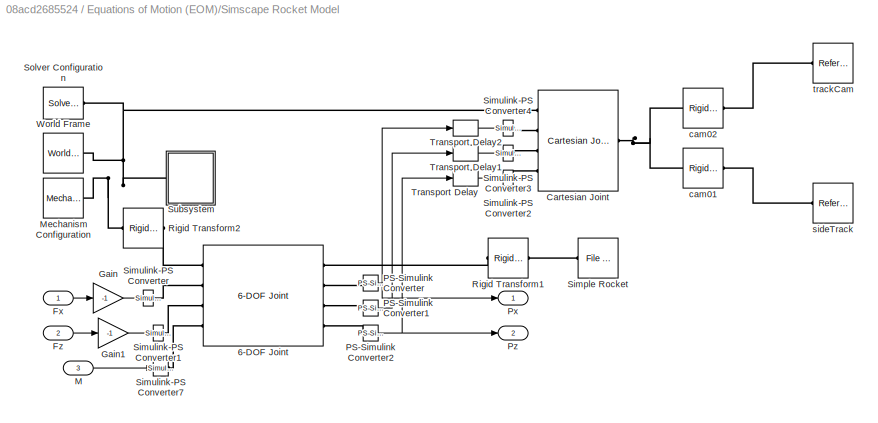
BLOCK [SubSystem] Equations of Motion (EOM)/Simscape Rocket Model
  Ports = [3, 2]
  RequestExecContextInheritance = off
  VariantControl = VSS_MODE == 1
BLOCK [Reference] Equations of Motion (EOM)/Simscape Rocket Model/6-DOF Joint  REF=sm_lib/Joints/6-DOF Joint
  Ports = [0, 0, 0, 0, 0, 4, 4]
  SourceBlock = sm_lib/Joints/6-DOF Joint
  SourceProductBaseCode = MS
  SourceType = 6-DOF Joint
BLOCK [Reference] Equations of Motion (EOM)/Simscape Rocket Model/Cartesian Joint  REF=sm_lib/Joints/Cartesian
Joint
  Ports = [0, 0, 0, 0, 0, 4, 1]
  SourceBlock = sm_lib/Joints/Cartesian\nJoint
  SourceProductBaseCode = MS
  SourceType = Cartesian\nJoint
BLOCK [Inport] Equations of Motion (EOM)/Simscape Rocket Model/Fx
BLOCK [Inport] Equations of Motion (EOM)/Simscape Rocket Model/Fz
  Port = 2
BLOCK [Gain] Equations of Motion (EOM)/Simscape Rocket Model/Gain
  Gain = -1
BLOCK [Gain] Equations of Motion (EOM)/Simscape Rocket Model/Gain1
  Gain = -1
BLOCK [Inport] Equations of Motion (EOM)/Simscape Rocket Model/M
  Port = 3
BLOCK [Reference] Equations of Motion (EOM)/Simscape Rocket Model/Mechanism Configuration  REF=sm_lib/Utilities/Mechanism
Configuration
  Ports = [0, 0, 0, 0, 0, 0, 1]
  SourceBlock = sm_lib/Utilities/Mechanism\nConfiguration
  SourceProductBaseCode = MS
  SourceType = Mechanism\nConfiguration
BLOCK [Reference] Equations of Motion (EOM)/Simscape Rocket Model/PS-Simulink Converter  REF=nesl_utility/PS-Simulink
Converter
  Ports = [0, 1, 0, 0, 0, 1]
  SourceBlock = nesl_utility/PS-Simulink\nConverter
  SourceProductBaseCode = PW,SS
  SourceType = PS-Simulink\nConverter
BLOCK [Reference] Equations of Motion (EOM)/Simscape Rocket Model/PS-Simulink Converter1  REF=nesl_utility/PS-Simulink
Converter
  Ports = [0, 1, 0, 0, 0, 1]
  SourceBlock = nesl_utility/PS-Simulink\nConverter
  SourceProductBaseCode = PW,SS
  SourceType = PS-Simulink\nConverter
BLOCK [Reference] Equations of Motion (EOM)/Simscape Rocket Model/PS-Simulink Converter2  REF=nesl_utility/PS-Simulink
Converter
  Ports = [0, 1, 0, 0, 0, 1]
  SourceBlock = nesl_utility/PS-Simulink\nConverter
  SourceProductBaseCode = PW,SS
  SourceType = PS-Simulink\nConverter
BLOCK [Outport] Equations of Motion (EOM)/Simscape Rocket Model/Px
BLOCK [Outport] Equations of Motion (EOM)/Simscape Rocket Model/Pz
  Port = 2
BLOCK [Reference] Equations of Motion (EOM)/Simscape Rocket Model/Rigid Transform1  REF=sm_lib/Frames and
Transforms/Rigid
Transform
  NameLocation = top
  Ports = [0, 0, 0, 0, 0, 1, 1]
  SourceBlock = sm_lib/Frames and\nTransforms/Rigid\nTransform
  SourceProductBaseCode = MS
  SourceType = Rigid\nTransform
BLOCK [Reference] Equations of Motion (EOM)/Simscape Rocket Model/Rigid Transform2  REF=sm_lib/Frames and
Transforms/Rigid
Transform
  NameLocation = top
  Ports = [0, 0, 0, 0, 0, 1, 1]
  SourceBlock = sm_lib/Frames and\nTransforms/Rigid\nTransform
  SourceProductBaseCode = MS
  SourceType = Rigid\nTransform
BLOCK [Reference] Equations of Motion (EOM)/Simscape Rocket Model/Simple Rocket  REF=sm_lib/Body Elements/File Solid
  NameLocation = top
  Ports = [0, 0, 0, 0, 0, 0, 1]
  SourceBlock = sm_lib/Body Elements/File Solid
  SourceProductBaseCode = MS
  SourceType = File Solid
BLOCK [Reference] Equations of Motion (EOM)/Simscape Rocket Model/Simulink-PS Converter  REF=nesl_utility/Simulink-PS
Converter
  Ports = [1, 0, 0, 0, 0, 0, 1]
  SourceBlock = nesl_utility/Simulink-PS\nConverter
  SourceProductBaseCode = PW,SS
  SourceType = Simulink-PS\nConverter
BLOCK [Reference] Equations of Motion (EOM)/Simscape Rocket Model/Simulink-PS Converter1  REF=nesl_utility/Simulink-PS
Converter
  Ports = [1, 0, 0, 0, 0, 0, 1]
  SourceBlock = nesl_utility/Simulink-PS\nConverter
  SourceProductBaseCode = PW,SS
  SourceType = Simulink-PS\nConverter
BLOCK [Reference] Equations of Motion (EOM)/Simscape Rocket Model/Simulink-PS Converter2  REF=nesl_utility/Simulink-PS
Converter
  Ports = [1, 0, 0, 0, 0, 0, 1]
  SourceBlock = nesl_utility/Simulink-PS\nConverter
  SourceProductBaseCode = PW,SS
  SourceType = Simulink-PS\nConverter
BLOCK [Reference] Equations of Motion (EOM)/Simscape Rocket Model/Simulink-PS Converter3  REF=nesl_utility/Simulink-PS
Converter
  Ports = [1, 0, 0, 0, 0, 0, 1]
  SourceBlock = nesl_utility/Simulink-PS\nConverter
  SourceProductBaseCode = PW,SS
  SourceType = Simulink-PS\nConverter
BLOCK [Reference] Equations of Motion (EOM)/Simscape Rocket Model/Simulink-PS Converter4  REF=nesl_utility/Simulink-PS
Converter
  Ports = [1, 0, 0, 0, 0, 0, 1]
  SourceBlock = nesl_utility/Simulink-PS\nConverter
  SourceProductBaseCode = PW,SS
  SourceType = Simulink-PS\nConverter
BLOCK [Reference] Equations of Motion (EOM)/Simscape Rocket Model/Simulink-PS Converter7  REF=nesl_utility/Simulink-PS
Converter
  Ports = [1, 0, 0, 0, 0, 0, 1]
  SourceBlock = nesl_utility/Simulink-PS\nConverter
  SourceProductBaseCode = PW,SS
  SourceType = Simulink-PS\nConverter
BLOCK [Reference] Equations of Motion (EOM)/Simscape Rocket Model/Solver Configuration  REF=nesl_utility/Solver
Configuration
  Ports = [0, 0, 0, 0, 0, 0, 1]
  SourceBlock = nesl_utility/Solver\nConfiguration
  SourceProductBaseCode = PW,SS
  SourceType = Solver\nConfiguration
BLOCK [SubSystem] Equations of Motion (EOM)/Simscape Rocket Model/Subsystem
  Ports = [0, 0, 0, 0, 0, 1]
  RequestExecContextInheritance = off
BLOCK [PMIOPort] Equations of Motion (EOM)/Simscape Rocket Model/Subsystem/Conn1
  Side = Left
BLOCK [Reference] Equations of Motion (EOM)/Simscape Rocket Model/Subsystem/Floor  REF=sm_lib/Body Elements/Brick Solid
  NameLocation = top
  Ports = [0, 0, 0, 0, 0, 0, 1]
  SourceBlock = sm_lib/Body Elements/Brick Solid
  SourceProductBaseCode = MS
  SourceType = Brick Solid
BLOCK [Reference] Equations of Motion (EOM)/Simscape Rocket Model/Subsystem/Marker1  REF=sm_lib/Body Elements/Brick Solid
  NameLocation = top
  Ports = [0, 0, 0, 0, 0, 0, 1]
  SourceBlock = sm_lib/Body Elements/Brick Solid
  SourceProductBaseCode = MS
  SourceType = Brick Solid
BLOCK [Reference] Equations of Motion (EOM)/Simscape Rocket Model/Subsystem/Marker2  REF=sm_lib/Body Elements/Brick Solid
  NameLocation = top
  Ports = [0, 0, 0, 0, 0, 0, 1]
  SourceBlock = sm_lib/Body Elements/Brick Solid
  SourceProductBaseCode = MS
  SourceType = Brick Solid
BLOCK [Reference] Equations of Motion (EOM)/Simscape Rocket Model/Subsystem/Marker3  REF=sm_lib/Body Elements/Brick Solid
  NameLocation = top
  Ports = [0, 0, 0, 0, 0, 0, 1]
  SourceBlock = sm_lib/Body Elements/Brick Solid
  SourceProductBaseCode = MS
  SourceType = Brick Solid
BLOCK [Reference] Equations of Motion (EOM)/Simscape Rocket Model/Subsystem/Rigid Transform  REF=sm_lib/Frames and
Transforms/Rigid
Transform
  Ports = [0, 0, 0, 0, 0, 1, 1]
  SourceBlock = sm_lib/Frames and\nTransforms/Rigid\nTransform
  SourceProductBaseCode = MS
  SourceType = Rigid\nTransform
BLOCK [Reference] Equations of Motion (EOM)/Simscape Rocket Model/Subsystem/Rigid Transform1  REF=sm_lib/Frames and
Transforms/Rigid
Transform
  Ports = [0, 0, 0, 0, 0, 1, 1]
  SourceBlock = sm_lib/Frames and\nTransforms/Rigid\nTransform
  SourceProductBaseCode = MS
  SourceType = Rigid\nTransform
BLOCK [Reference] Equations of Motion (EOM)/Simscape Rocket Model/Subsystem/Rigid Transform2  REF=sm_lib/Frames and
Transforms/Rigid
Transform
  Ports = [0, 0, 0, 0, 0, 1, 1]
  SourceBlock = sm_lib/Frames and\nTransforms/Rigid\nTransform
  SourceProductBaseCode = MS
  SourceType = Rigid\nTransform
BLOCK [Reference] Equations of Motion (EOM)/Simscape Rocket Model/Subsystem/Rigid Transform3  REF=sm_lib/Frames and
Transforms/Rigid
Transform
  Ports = [0, 0, 0, 0, 0, 1, 1]
  SourceBlock = sm_lib/Frames and\nTransforms/Rigid\nTransform
  SourceProductBaseCode = MS
  SourceType = Rigid\nTransform
BLOCK [TransportDelay] Equations of Motion (EOM)/Simscape Rocket Model/Transport Delay
  BufferSize = 100
  DelayTime = 0.01
  Ports = [1, 1]
BLOCK [TransportDelay] Equations of Motion (EOM)/Simscape Rocket Model/Transport Delay1
  BufferSize = 100
  DelayTime = 0.01
  Ports = [1, 1]
BLOCK [TransportDelay] Equations of Motion (EOM)/Simscape Rocket Model/Transport Delay2
  BufferSize = 100
  DelayTime = 0.01
  Ports = [1, 1]
BLOCK [Reference] Equations of Motion (EOM)/Simscape Rocket Model/World Frame  REF=sm_lib/Frames and
Transforms/World Frame
  Ports = [0, 0, 0, 0, 0, 0, 1]
  SourceBlock = sm_lib/Frames and\nTransforms/World Frame
  SourceProductBaseCode = MS
  SourceType = World Frame
BLOCK [Reference] Equations of Motion (EOM)/Simscape Rocket Model/cam01  REF=sm_lib/Frames and
Transforms/Rigid
Transform
  Ports = [0, 0, 0, 0, 0, 1, 1]
  SourceBlock = sm_lib/Frames and\nTransforms/Rigid\nTransform
  SourceProductBaseCode = MS
  SourceType = Rigid\nTransform
BLOCK [Reference] Equations of Motion (EOM)/Simscape Rocket Model/cam02  REF=sm_lib/Frames and
Transforms/Rigid
Transform
  Ports = [0, 0, 0, 0, 0, 1, 1]
  SourceBlock = sm_lib/Frames and\nTransforms/Rigid\nTransform
  SourceProductBaseCode = MS
  SourceType = Rigid\nTransform
BLOCK [Reference] Equations of Motion (EOM)/Simscape Rocket Model/sideTrack  REF=sm_lib/Frames and
Transforms/Reference
Frame
  Ports = [0, 0, 0, 0, 0, 0, 1]
  SourceBlock = sm_lib/Frames and\nTransforms/Reference\nFrame
  SourceProductName = Multibody
  SourceType = Reference\nFrame
BLOCK [Reference] Equations of Motion (EOM)/Simscape Rocket Model/trackCam  REF=sm_lib/Frames and
Transforms/Reference
Frame
  Ports = [0, 0, 0, 0, 0, 0, 1]
  SourceBlock = sm_lib/Frames and\nTransforms/Reference\nFrame
  SourceProductName = Multibody
  SourceType = Reference\nFrame
BLOCK [Outport] Equations of Motion (EOM)/States
BLOCK [Terminator] Equations of Motion (EOM)/Terminator
BLOCK [Reference] Equations of Motion (EOM)/X-Z Trajectory  REF=simulink/Sinks/XY Graph
  Ports = [2]
  SourceBlock = simulink/Sinks/XY Graph
  SourceProductBaseCode = SL
  SourceType = XY scope.
BLOCK [Reference] Equations of Motion (EOM)/X-Z Trajectory1  REF=simulink/Sinks/XY Graph
  Ports = [2]
  SourceBlock = simulink/Sinks/XY Graph
  SourceProductBaseCode = SL
  SourceType = XY scope.
BLOCK [Inport] Equations of Motion (EOM)/massDot (kg//s)
  Port = 3
BLOCK [SubSystem] Propulsion
  Ports = [0, 2]
  RequestExecContextInheritance = off
BLOCK [Clock] Propulsion/Clock
  Decimation = 1
BLOCK [Product] Propulsion/Divide
  Inputs = */
  Ports = [2, 1]
BLOCK [Integrator] Propulsion/Integrator
  Ports = [1, 1]
BLOCK [Outport] Propulsion/Mass (kg)
BLOCK [Product] Propulsion/Product
  Ports = [2, 1]
BLOCK [Constant] Propulsion/Propellant Mass
  Value = propMass
BLOCK [Constant] Propulsion/Rocket Mass
  Value = wetMass
BLOCK [Sum] Propulsion/Subtract
  IconShape = rectangular
  Inputs = +-
  Ports = [2, 1]
BLOCK [Outport] Propulsion/Thrust (N)
  Port = 2
BLOCK [Lookup_n-D] Propulsion/Thrust Curve Table
  BreakpointsForDimension1 = time
  ExtrapMethod = Clip
  InputPortMap = u0
  InternalRulePriority = Speed
  NumberOfTableDimensions = 1
  Ports = [1, 1]
  RndMeth = Simplest
  Table = thrust
BLOCK [Constant] Propulsion/Total Impulse
  Value = totalImpulse
ANNOTATION Aerodynamics/CP Forces and Moments/Normal Force Coefficient: Beta (not the angle)
ANNOTATION Aerodynamics/CP Forces and Moments/Normal Force Coefficient: Cylindrical Tube
ANNOTATION Aerodynamics/CP Forces and Moments/Normal Force Coefficient: Normal Coefficient derivative for fins
ANNOTATION Aerodynamics/CP Forces and Moments/Normal Force Coefficient: Nosecone
ANNOTATION Avionics/IMU: Pitch
ANNOTATION Avionics/IMU: noise from gyroscope
ANNOTATION Avionics/IMU: roll
ANNOTATION Avionics/IMU: simulated rocket data
ANNOTATION Avionics/Pressure Sensor/Pressure to Altitude: presser & temp to altitude
ANNOTATION Avionics/Pressure Sensor/Pressure to Altitude: \/ \/ to power of 1/5.257
NET   :1 -> Aerodynamics:4, Air Brakes:1
LINE 6DoF FlightGear Animation/Bus Selector:1 -> 6DoF FlightGear Animation/Flat Earth to LLA:1
LINE 6DoF FlightGear Animation/Bus Selector:2 -> 6DoF FlightGear Animation/Demux1:1
LINE 6DoF FlightGear Animation/Constant:1 -> 6DoF FlightGear Animation/Flat Earth to LLA:2
LINE 6DoF FlightGear Animation/Demux1:1 -> 6DoF FlightGear Animation/Mux:4
LINE 6DoF FlightGear Animation/Demux1:2 -> 6DoF FlightGear Animation/Mux:5
LINE 6DoF FlightGear Animation/Demux1:3 -> 6DoF FlightGear Animation/Mux:6
NET 6DoF FlightGear Animation/Demux:1 -> 6DoF FlightGear Animation/Display1:1, 6DoF FlightGear Animation/Mux:2
NET 6DoF FlightGear Animation/Demux:2 -> 6DoF FlightGear Animation/Display2:1, 6DoF FlightGear Animation/Mux:1
LINE 6DoF FlightGear Animation/Flat Earth to LLA:1 -> 6DoF FlightGear Animation/Demux:1
NET 6DoF FlightGear Animation/Flat Earth to LLA:2 -> 6DoF FlightGear Animation/Display:1, 6DoF FlightGear Animation/Mux:3
LINE 6DoF FlightGear Animation/Mux:1 -> 6DoF FlightGear Animation/FlightGear Preconfigured 6DoF Animation:1
LINE 6DoF FlightGear Animation/States:1 -> 6DoF FlightGear Animation/Bus Selector:1
LINE Aerodynamics/Add:1 -> Aerodynamics/Switch1:1
LINE Aerodynamics/Bus Selector:1 -> Aerodynamics/CP Forces and Moments:2
LINE Aerodynamics/Bus Selector:2 -> Aerodynamics/Environment:1
LINE Aerodynamics/Bus Selector:3 -> Aerodynamics/Environment:2
LINE Aerodynamics/Bus Selector:4 -> Aerodynamics/Selector1:1
LINE Aerodynamics/CP Forces and Moments/AOA/Beta:1 -> Aerodynamics/CP Forces and Moments/AOA/AOA:1
LINE Aerodynamics/CP Forces and Moments/AOA:1 -> Aerodynamics/CP Forces and Moments/Axial Force Coefficient1:2
NET Aerodynamics/CP Forces and Moments/Axial Force Coefficient/AOA:1 -> Aerodynamics/CP Forces and Moments/Axial Force Coefficient/Gain:1, Aerodynamics/CP Forces and Moments/Axial Force Coefficient/Trig Function 2:1, Aerodynamics/CP Forces and Moments/Axial Force Coefficient/Trig Function:1
LINE Aerodynamics/CP Forces and Moments/Axial Force Coefficient/Cd:1 -> Aerodynamics/CP Forces and Moments/Axial Force Coefficient/Product:2
LINE Aerodynamics/CP Forces and Moments/Axial Force Coefficient/Cn:1 -> Aerodynamics/CP Forces and Moments/Axial Force Coefficient/Gain1:1
LINE Aerodynamics/CP Forces and Moments/Axial Force Coefficient/Constant:1 -> Aerodynamics/CP Forces and Moments/Axial Force Coefficient/Subtract1:1
NET Aerodynamics/CP Forces and Moments/Axial Force Coefficient/Divide:1 -> Aerodynamics/CP Forces and Moments/Axial Force Coefficient/Ca:1, Aerodynamics/CP Forces and Moments/Axial Force Coefficient/Scope:1
LINE Aerodynamics/CP Forces and Moments/Axial Force Coefficient/Gain1:1 -> Aerodynamics/CP Forces and Moments/Axial Force Coefficient/Product1:2
LINE Aerodynamics/CP Forces and Moments/Axial Force Coefficient/Gain:1 -> Aerodynamics/CP Forces and Moments/Axial Force Coefficient/Trig Function 1:1
LINE Aerodynamics/CP Forces and Moments/Axial Force Coefficient/Math Function:1 -> Aerodynamics/CP Forces and Moments/Axial Force Coefficient/Subtract1:2
NET Aerodynamics/CP Forces and Moments/Axial Force Coefficient/Product1:1 -> Aerodynamics/CP Forces and Moments/Axial Force Coefficient/Scope4:1, Aerodynamics/CP Forces and Moments/Axial Force Coefficient/Subtract:2
NET Aerodynamics/CP Forces and Moments/Axial Force Coefficient/Product:1 -> Aerodynamics/CP Forces and Moments/Axial Force Coefficient/Scope2:1, Aerodynamics/CP Forces and Moments/Axial Force Coefficient/Subtract:1
NET Aerodynamics/CP Forces and Moments/Axial Force Coefficient/Subtract1:1 -> Aerodynamics/CP Forces and Moments/Axial Force Coefficient/Divide:2, Aerodynamics/CP Forces and Moments/Axial Force Coefficient/Scope1:1
NET Aerodynamics/CP Forces and Moments/Axial Force Coefficient/Subtract:1 -> Aerodynamics/CP Forces and Moments/Axial Force Coefficient/Divide:1, Aerodynamics/CP Forces and Moments/Axial Force Coefficient/Scope3:1
LINE Aerodynamics/CP Forces and Moments/Axial Force Coefficient/Trig Function 1:1 -> Aerodynamics/CP Forces and Moments/Axial Force Coefficient/Product1:1
LINE Aerodynamics/CP Forces and Moments/Axial Force Coefficient/Trig Function 2:1 -> Aerodynamics/CP Forces and Moments/Axial Force Coefficient/Math Function:1
LINE Aerodynamics/CP Forces and Moments/Axial Force Coefficient/Trig Function:1 -> Aerodynamics/CP Forces and Moments/Axial Force Coefficient/Product:1
LINE Aerodynamics/CP Forces and Moments/Axial Force Coefficient1/AOA:1 -> Aerodynamics/CP Forces and Moments/Axial Force Coefficient1/Trig Function:1
LINE Aerodynamics/CP Forces and Moments/Axial Force Coefficient1/Cd:1 -> Aerodynamics/CP Forces and Moments/Axial Force Coefficient1/Product:2
NET Aerodynamics/CP Forces and Moments/Axial Force Coefficient1/Product:1 -> Aerodynamics/CP Forces and Moments/Axial Force Coefficient1/Ca:1, Aerodynamics/CP Forces and Moments/Axial Force Coefficient1/Scope:1
LINE Aerodynamics/CP Forces and Moments/Axial Force Coefficient1/Trig Function:1 -> Aerodynamics/CP Forces and Moments/Axial Force Coefficient1/Product:1
LINE Aerodynamics/CP Forces and Moments/Axial Force Coefficient1:1 -> Aerodynamics/CP Forces and Moments/Axial Forces:1
LINE Aerodynamics/CP Forces and Moments/Axial Forces/Aref:1 -> Aerodynamics/CP Forces and Moments/Axial Forces/Product:2
LINE Aerodynamics/CP Forces and Moments/Axial Forces/Ca:1 -> Aerodynamics/CP Forces and Moments/Axial Forces/Product:1
NET Aerodynamics/CP Forces and Moments/Axial Forces/Product:1 -> Aerodynamics/CP Forces and Moments/Axial Forces/Axial Force:1, Aerodynamics/CP Forces and Moments/Axial Forces/Scope:1
LINE Aerodynamics/CP Forces and Moments/Axial Forces/q :1 -> Aerodynamics/CP Forces and Moments/Axial Forces/Product:3
NET Aerodynamics/CP Forces and Moments/Axial Forces:1 -> Aerodynamics/CP Forces and Moments/Display5:1, Aerodynamics/CP Forces and Moments/Forces:1, Aerodynamics/CP Forces and Moments/Scope3:1
LINE Aerodynamics/CP Forces and Moments/CG:1 -> Aerodynamics/CP Forces and Moments/Moments about CG due to Forces [NOTE: Only Normal Force applys moments about CG]:2
LINE Aerodynamics/CP Forces and Moments/Cd:1 -> Aerodynamics/CP Forces and Moments/Drag Force Coefficient:1
LINE Aerodynamics/CP Forces and Moments/Constant CP:1 -> Aerodynamics/CP Forces and Moments/Moments about CG due to Forces [NOTE: Only Normal Force applys moments about CG]:3
LINE Aerodynamics/CP Forces and Moments/Demux1:1 -> Aerodynamics/CP Forces and Moments/Display4:1
NET Aerodynamics/CP Forces and Moments/Demux1:2 -> Aerodynamics/CP Forces and Moments/Display3:1, Aerodynamics/CP Forces and Moments/Mux:1, Aerodynamics/CP Forces and Moments/Mux:2, Aerodynamics/CP Forces and Moments/Mux:3
LINE Aerodynamics/CP Forces and Moments/Demux:1 -> Aerodynamics/CP Forces and Moments/Display:1
LINE Aerodynamics/CP Forces and Moments/Demux:2 -> Aerodynamics/CP Forces and Moments/Display1:1
LINE Aerodynamics/CP Forces and Moments/Demux:3 -> Aerodynamics/CP Forces and Moments/Display2:1
LINE Aerodynamics/CP Forces and Moments/Drag Force Coefficient/In1:1 -> Aerodynamics/CP Forces and Moments/Drag Force Coefficient/Cd:1
LINE Aerodynamics/CP Forces and Moments/Drag Force Coefficient:1 -> Aerodynamics/CP Forces and Moments/Axial Force Coefficient1:1
NET Aerodynamics/CP Forces and Moments/Dynamic Pressure:1 -> Aerodynamics/CP Forces and Moments/Axial Forces:3, Aerodynamics/CP Forces and Moments/Normal Forces:3, Aerodynamics/CP Forces and Moments/Scope:1
NET Aerodynamics/CP Forces and Moments/Incidence, Sideslip, & Airspeed:1 -> Aerodynamics/CP Forces and Moments/AOA:1, Aerodynamics/CP Forces and Moments/Normal Force Coefficient:1
LINE Aerodynamics/CP Forces and Moments/Incidence, Sideslip, & Airspeed:2 -> Aerodynamics/CP Forces and Moments/Normal Force Coefficient:2
LINE Aerodynamics/CP Forces and Moments/Incidence, Sideslip, & Airspeed:3 -> Aerodynamics/CP Forces and Moments/Terminator:1
NET Aerodynamics/CP Forces and Moments/Moments about CG due to Forces [NOTE: Only Normal Force applys moments about CG]:1 -> Aerodynamics/CP Forces and Moments/Demux:1, Aerodynamics/CP Forces and Moments/Moments:1, Aerodynamics/CP Forces and Moments/Scope4:1
LINE Aerodynamics/CP Forces and Moments/Mux:1 -> Aerodynamics/CP Forces and Moments/Moments about CG due to Forces [NOTE: Only Normal Force applys moments about CG]:1
LINE Aerodynamics/CP Forces and Moments/Normal Force Coefficient/Abs:1 -> Aerodynamics/CP Forces and Moments/Normal Force Coefficient/Sqrt1:1
NET Aerodynamics/CP Forces and Moments/Normal Force Coefficient/Add:1 -> Aerodynamics/CP Forces and Moments/Normal Force Coefficient/Cn:1, Aerodynamics/CP Forces and Moments/Normal Force Coefficient/Scope:1
LINE Aerodynamics/CP Forces and Moments/Normal Force Coefficient/Bias1:1 -> Aerodynamics/CP Forces and Moments/Normal Force Coefficient/Divide2:3
LINE Aerodynamics/CP Forces and Moments/Normal Force Coefficient/Bias2:1 -> Aerodynamics/CP Forces and Moments/Normal Force Coefficient/Abs:1
LINE Aerodynamics/CP Forces and Moments/Normal Force Coefficient/Bias3:1 -> Aerodynamics/CP Forces and Moments/Normal Force Coefficient/Sqrt:1
LINE Aerodynamics/CP Forces and Moments/Normal Force Coefficient/Const:1 -> Aerodynamics/CP Forces and Moments/Normal Force Coefficient/Divide2:2
NET Aerodynamics/CP Forces and Moments/Normal Force Coefficient/Divide2:1 -> Aerodynamics/CP Forces and Moments/Normal Force Coefficient/Add:3, Aerodynamics/CP Forces and Moments/Normal Force Coefficient/Scope2:3
LINE Aerodynamics/CP Forces and Moments/Normal Force Coefficient/Mach Number:1 -> Aerodynamics/CP Forces and Moments/Normal Force Coefficient/Math Function1:1
LINE Aerodynamics/CP Forces and Moments/Normal Force Coefficient/Math Function1:1 -> Aerodynamics/CP Forces and Moments/Normal Force Coefficient/Bias2:1
LINE Aerodynamics/CP Forces and Moments/Normal Force Coefficient/Math Function2:1 -> Aerodynamics/CP Forces and Moments/Normal Force Coefficient/Bias3:1
LINE Aerodynamics/CP Forces and Moments/Normal Force Coefficient/Math Function3:1 -> Aerodynamics/CP Forces and Moments/Normal Force Coefficient/gain1:1
LINE Aerodynamics/CP Forces and Moments/Normal Force Coefficient/Math Function:1 -> Aerodynamics/CP Forces and Moments/Normal Force Coefficient/gain2:1
NET Aerodynamics/CP Forces and Moments/Normal Force Coefficient/Mux:1 -> Aerodynamics/CP Forces and Moments/Normal Force Coefficient/Divide2:1, Aerodynamics/CP Forces and Moments/Normal Force Coefficient/Trig Function1:1, Aerodynamics/CP Forces and Moments/Normal Force Coefficient/Trig Function:1
LINE Aerodynamics/CP Forces and Moments/Normal Force Coefficient/Sqrt1:1 -> Aerodynamics/CP Forces and Moments/Normal Force Coefficient/gain:1
LINE Aerodynamics/CP Forces and Moments/Normal Force Coefficient/Sqrt:1 -> Aerodynamics/CP Forces and Moments/Normal Force Coefficient/Bias1:1
LINE Aerodynamics/CP Forces and Moments/Normal Force Coefficient/Trig Function1:1 -> Aerodynamics/CP Forces and Moments/Normal Force Coefficient/Math Function3:1
LINE Aerodynamics/CP Forces and Moments/Normal Force Coefficient/Trig Function:1 -> Aerodynamics/CP Forces and Moments/Normal Force Coefficient/Math Function:1
LINE Aerodynamics/CP Forces and Moments/Normal Force Coefficient/V:1 -> Aerodynamics/CP Forces and Moments/Normal Force Coefficient/Mach Number:1
LINE Aerodynamics/CP Forces and Moments/Normal Force Coefficient/a (m//s):1 -> Aerodynamics/CP Forces and Moments/Normal Force Coefficient/Mach Number:2
LINE Aerodynamics/CP Forces and Moments/Normal Force Coefficient/alpha:1 -> Aerodynamics/CP Forces and Moments/Normal Force Coefficient/Mux:2
LINE Aerodynamics/CP Forces and Moments/Normal Force Coefficient/beta:1 -> Aerodynamics/CP Forces and Moments/Normal Force Coefficient/Mux:1
NET Aerodynamics/CP Forces and Moments/Normal Force Coefficient/gain1:1 -> Aerodynamics/CP Forces and Moments/Normal Force Coefficient/Add:2, Aerodynamics/CP Forces and Moments/Normal Force Coefficient/Scope2:2
NET Aerodynamics/CP Forces and Moments/Normal Force Coefficient/gain2:1 -> Aerodynamics/CP Forces and Moments/Normal Force Coefficient/Add:1, Aerodynamics/CP Forces and Moments/Normal Force Coefficient/Scope2:1
LINE Aerodynamics/CP Forces and Moments/Normal Force Coefficient/gain:1 -> Aerodynamics/CP Forces and Moments/Normal Force Coefficient/Math Function2:1
LINE Aerodynamics/CP Forces and Moments/Normal Force Coefficient:1 -> Aerodynamics/CP Forces and Moments/Normal Forces:1
LINE Aerodynamics/CP Forces and Moments/Normal Forces/Aref:1 -> Aerodynamics/CP Forces and Moments/Normal Forces/Product:2
LINE Aerodynamics/CP Forces and Moments/Normal Forces/Cn:1 -> Aerodynamics/CP Forces and Moments/Normal Forces/Product:1
NET Aerodynamics/CP Forces and Moments/Normal Forces/Product:1 -> Aerodynamics/CP Forces and Moments/Normal Forces/Normal Force:1, Aerodynamics/CP Forces and Moments/Normal Forces/Scope:1
LINE Aerodynamics/CP Forces and Moments/Normal Forces/q :1 -> Aerodynamics/CP Forces and Moments/Normal Forces/Product:3
LINE Aerodynamics/CP Forces and Moments/Normal Forces:1 -> Aerodynamics/CP Forces and Moments/Demux1:1
NET Aerodynamics/CP Forces and Moments/Reference Area:1 -> Aerodynamics/CP Forces and Moments/Axial Forces:2, Aerodynamics/CP Forces and Moments/Normal Forces:2
NET Aerodynamics/CP Forces and Moments/Vb:1 -> Aerodynamics/CP Forces and Moments/Dynamic Pressure:1, Aerodynamics/CP Forces and Moments/Incidence, Sideslip, & Airspeed:1, Aerodynamics/CP Forces and Moments/Normal Force Coefficient:3
LINE Aerodynamics/CP Forces and Moments/a (m//s):1 -> Aerodynamics/CP Forces and Moments/Normal Force Coefficient:4
LINE Aerodynamics/CP Forces and Moments/rho:1 -> Aerodynamics/CP Forces and Moments/Dynamic Pressure:2
NET Aerodynamics/CP Forces and Moments:1 -> Aerodynamics/Add:3, Aerodynamics/Coast Distance:1
LINE Aerodynamics/CP Forces and Moments:2 -> Aerodynamics/Switch2:1
LINE Aerodynamics/Cd:1 -> Aerodynamics/CP Forces and Moments:1
NET Aerodynamics/Clock:1 -> Aerodynamics/Switch1:2, Aerodynamics/Switch2:2
LINE Aerodynamics/Coast Distance/Divide1:1 -> Aerodynamics/Coast Distance/Product:1
LINE Aerodynamics/Coast Distance/Divide2:1 -> Aerodynamics/Coast Distance/Math Function:1
LINE Aerodynamics/Coast Distance/Gain:1 -> Aerodynamics/Coast Distance/Divide1:2
NET Aerodynamics/Coast Distance/Gravity:1 -> Aerodynamics/Coast Distance/Divide2:2, Aerodynamics/Coast Distance/Sum:2
LINE Aerodynamics/Coast Distance/Math Function1:1 -> Aerodynamics/Coast Distance/Product 2:2
LINE Aerodynamics/Coast Distance/Math Function:1 -> Aerodynamics/Coast Distance/Product:2
LINE Aerodynamics/Coast Distance/Product 2:1 -> Aerodynamics/Coast Distance/Divide1:1
NET Aerodynamics/Coast Distance/Product:1 -> Aerodynamics/Coast Distance/Scope:1, Aerodynamics/Coast Distance/Xc (m):1
LINE Aerodynamics/Coast Distance/Sum:1 -> Aerodynamics/Coast Distance/Divide2:1
LINE Aerodynamics/Coast Distance/Ve:1 -> Aerodynamics/Coast Distance/Math Function1:1
NET Aerodynamics/Coast Distance/drag:1 -> Aerodynamics/Coast Distance/Gain:1, Aerodynamics/Coast Distance/Sum:1
NET Aerodynamics/Coast Distance/mass:1 -> Aerodynamics/Coast Distance/Gravity:1, Aerodynamics/Coast Distance/Product 2:1
LINE Aerodynamics/Coast Distance:1 -> Aerodynamics/Xc (m):1
NET Aerodynamics/Derivative:1 -> Aerodynamics/Estimate Center of Gravity:2, Aerodynamics/massDot (kg//s):1
LINE Aerodynamics/Environment/COESA Atmosphere Model:1 -> Aerodynamics/Environment/Temp (K):1
LINE Aerodynamics/Environment/COESA Atmosphere Model:2 -> Aerodynamics/Environment/a (m//s):1
LINE Aerodynamics/Environment/COESA Atmosphere Model:3 -> Aerodynamics/Environment/Terminator1:1
LINE Aerodynamics/Environment/COESA Atmosphere Model:4 -> Aerodynamics/Environment/rho (kg//m^3):1
LINE Aerodynamics/Environment/DCM:1 -> Aerodynamics/Environment/Wind Shear Model:2
LINE Aerodynamics/Environment/Incidence & Airspeed:1 -> Aerodynamics/Environment/Terminator:1
LINE Aerodynamics/Environment/Incidence & Airspeed:2 -> Aerodynamics/Environment/Discrete Wind Gust Model:1
NET Aerodynamics/Environment/Selector1:1 -> Aerodynamics/Environment/COESA Atmosphere Model:1, Aerodynamics/Environment/Scope:1, Aerodynamics/Environment/Wind Shear Model:1
LINE Aerodynamics/Environment/Xe (m):1 -> Aerodynamics/Environment/Selector1:1
LINE Aerodynamics/Environment:1 -> Aerodynamics/CP Forces and Moments:3
NET Aerodynamics/Environment:2 -> Aerodynamics/CP Forces and Moments:4, Aerodynamics/Pressure (Pa):1
LINE Aerodynamics/Environment:3 -> Aerodynamics/Temp (K):1
LINE Aerodynamics/Estimate Center of Gravity:1 -> Aerodynamics/CP Forces and Moments:5
LINE Aerodynamics/Estimate Center of Gravity:2 -> Aerodynamics/Terminator:1
NET Aerodynamics/Mass (kg):1 -> Aerodynamics/Coast Distance:3, Aerodynamics/Derivative:1, Aerodynamics/Estimate Center of Gravity:1, Aerodynamics/gravity:1
LINE Aerodynamics/Selector1:1 -> Aerodynamics/Coast Distance:2
LINE Aerodynamics/States:1 -> Aerodynamics/Bus Selector:1
LINE Aerodynamics/Switch1:1 -> Aerodynamics/Forces (N):1
LINE Aerodynamics/Switch2:1 -> Aerodynamics/Moments (N*m):1
LINE Aerodynamics/Thrust (N):1 -> Aerodynamics/Vector Concat:1
LINE Aerodynamics/Vector Concat1:1 -> Aerodynamics/Add:2
LINE Aerodynamics/Vector Concat:1 -> Aerodynamics/Add:1
LINE Aerodynamics/gravity:1 -> Aerodynamics/Vector Concat1:1
NET Aerodynamics/zero :1 -> Aerodynamics/Vector Concat1:2, Aerodynamics/Vector Concat1:3, Aerodynamics/Vector Concat:2, Aerodynamics/Vector Concat:3
NET Aerodynamics/zeros :1 -> Aerodynamics/Switch1:3, Aerodynamics/Switch2:3
LINE Aerodynamics:1 -> Equations of Motion (EOM):1
LINE Aerodynamics:2 -> Equations of Motion (EOM):2
LINE Aerodynamics:3 -> Equations of Motion (EOM):3
LINE Aerodynamics:4 -> Air Brakes:2
LINE Aerodynamics:5 -> Avionics:2
LINE Aerodynamics:6 -> Avionics:3
LINE Air Brakes/  :1 -> Air Brakes/[Air Brakes On?]:2
LINE Air Brakes/ :1 -> Air Brakes/[Full Brake?]:2
NET Air Brakes/Air Brakes:1 -> Air Brakes/[Alt. > Target Alt.?]:1, Air Brakes/[Full Brake?]:1
LINE Air Brakes/Bus Selector:1 -> Air Brakes/Selector :1
LINE Air Brakes/Bus Selector:2 -> Air Brakes/Selector1:1
NET Air Brakes/Derivative:1 -> Air Brakes/Scope1:1, Air Brakes/[Post Burn?]:2
LINE Air Brakes/Memory:1 -> Air Brakes/Cd :1
NET Air Brakes/No Brakes:1 -> Air Brakes/[Air Brakes On?]:3, Air Brakes/[Alt. > Target Alt.?]:3, Air Brakes/[Post Burn?]:1
NET Air Brakes/Selector :1 -> Air Brakes/Scope:1, Air Brakes/Sum:2
LINE Air Brakes/Selector1:1 -> Air Brakes/Derivative:1
LINE Air Brakes/States:1 -> Air Brakes/Bus Selector:1
NET Air Brakes/Sum:1 -> Air Brakes/Scope2:1, Air Brakes/[Alt. > Target Alt.?]:2
NET Air Brakes/Xc (m):1 -> Air Brakes/Scope3:1, Air Brakes/Sum:1
LINE Air Brakes/[Air Brakes On?]:1 -> Air Brakes/[Full Brake?]:3
LINE Air Brakes/[Alt. > Target Alt.?]:1 -> Air Brakes/[Air Brakes On?]:1
LINE Air Brakes/[Full Brake?]:1 -> Air Brakes/[Post Burn?]:3
LINE Air Brakes/[Post Burn?]:1 -> Air Brakes/Memory:1
LINE Air Brakes:1 -> Aerodynamics:1
LINE Avionics/Add:1 -> Avionics/Scope:1
NET Avionics/Alpha:1 -> Avionics/Product1:2, Avionics/Subtract:2
LINE Avionics/Bus Selector:1 -> Avionics/GPS:1
LINE Avionics/Bus Selector:2 -> Avionics/IMU:1
LINE Avionics/Constant:1 -> Avionics/Subtract:1
NET Avionics/GPS/AWGN Channel:1 -> Avionics/GPS/GPS Alt:1, Avionics/GPS/Scope:1
LINE Avionics/GPS/Add:1 -> Avionics/GPS/AWGN Channel:1
LINE Avionics/GPS/Constant:1 -> Avionics/GPS/AWGN Channel:2
LINE Avionics/GPS/Gain:1 -> Avionics/GPS/Add:2
NET Avionics/GPS/altitude:1 -> Avionics/GPS/Add:1, Avionics/GPS/Gain:1
LINE Avionics/GPS:1 -> Avionics/Product:1
NET Avionics/IMU/AWGN Channel:1 -> Avionics/IMU/Add1:1, Avionics/IMU/Add2:1, Avionics/IMU/Add:1
LINE Avionics/IMU/Add1:1 -> Avionics/IMU/Scope1:1
LINE Avionics/IMU/Add2:1 -> Avionics/IMU/Scope2:1
LINE Avionics/IMU/Add:1 -> Avionics/IMU/Scope:1
LINE Avionics/IMU/Clock:1 -> Avionics/IMU/AWGN Channel:1
LINE Avionics/IMU/Constant:1 -> Avionics/IMU/AWGN Channel:2
LINE Avionics/IMU/Demux:1 -> Avionics/IMU/Gain2:1
LINE Avionics/IMU/Demux:2 -> Avionics/IMU/Gain1:1
LINE Avionics/IMU/Demux:3 -> Avionics/IMU/Gain:1
LINE Avionics/IMU/Gain1:1 -> Avionics/IMU/Add1:2
LINE Avionics/IMU/Gain2:1 -> Avionics/IMU/Add2:2
LINE Avionics/IMU/Gain:1 -> Avionics/IMU/Add:2
LINE Avionics/IMU/roll, pitch, yaw:1 -> Avionics/IMU/Demux:1
LINE Avionics/Pressure (Pa):1 -> Avionics/Pressure Sensor:1
NET Avionics/Pressure Sensor/AWGN Channel:1 -> Avionics/Pressure Sensor/BMP Alt:1, Avionics/Pressure Sensor/Scope:1
LINE Avionics/Pressure Sensor/Add:1 -> Avionics/Pressure Sensor/Pressure to Altitude:1
LINE Avionics/Pressure Sensor/Constant:1 -> Avionics/Pressure Sensor/AWGN Channel:2
LINE Avionics/Pressure Sensor/Gain:1 -> Avionics/Pressure Sensor/Add:2
NET Avionics/Pressure Sensor/Pa to hPa:1 -> Avionics/Pressure Sensor/Add:1, Avionics/Pressure Sensor/Gain:1
LINE Avionics/Pressure Sensor/Pressure (Pa):1 -> Avionics/Pressure Sensor/Pa to hPa:1
LINE Avionics/Pressure Sensor/Pressure to Altitude/Add:1 -> Avionics/Pressure Sensor/Pressure to Altitude/Product:2
LINE Avionics/Pressure Sensor/Pressure to Altitude/Atmostpheric Pressure:1 -> Avionics/Pressure Sensor/Pressure to Altitude/Divide1:2
LINE Avionics/Pressure Sensor/Pressure to Altitude/Constant1:1 -> Avionics/Pressure Sensor/Pressure to Altitude/Divide:2
LINE Avionics/Pressure Sensor/Pressure to Altitude/Constant2:1 -> Avionics/Pressure Sensor/Pressure to Altitude/Subtract:2
LINE Avionics/Pressure Sensor/Pressure to Altitude/Constant:1 -> Avionics/Pressure Sensor/Pressure to Altitude/Add:2
LINE Avionics/Pressure Sensor/Pressure to Altitude/Divide1:1 -> Avionics/Pressure Sensor/Pressure to Altitude/Fcn:1
LINE Avionics/Pressure Sensor/Pressure to Altitude/Divide:1 -> Avionics/Pressure Sensor/Pressure to Altitude/Altitude:1
LINE Avionics/Pressure Sensor/Pressure to Altitude/Fcn:1 -> Avionics/Pressure Sensor/Pressure to Altitude/Subtract:1
LINE Avionics/Pressure Sensor/Pressure to Altitude/Product:1 -> Avionics/Pressure Sensor/Pressure to Altitude/Divide:1
LINE Avionics/Pressure Sensor/Pressure to Altitude/Subtract:1 -> Avionics/Pressure Sensor/Pressure to Altitude/Product:1
LINE Avionics/Pressure Sensor/Pressure to Altitude/Temp (C) :1 -> Avionics/Pressure Sensor/Pressure to Altitude/Add:1
LINE Avionics/Pressure Sensor/Pressure to Altitude/sealevel pressure:1 -> Avionics/Pressure Sensor/Pressure to Altitude/Divide1:1
LINE Avionics/Pressure Sensor/Pressure to Altitude:1 -> Avionics/Pressure Sensor/AWGN Channel:1
LINE Avionics/Pressure Sensor/Temp (K) :1 -> Avionics/Pressure Sensor/Temperature Conversion:1
LINE Avionics/Pressure Sensor/Temperature Conversion:1 -> Avionics/Pressure Sensor/Pressure to Altitude:2
LINE Avionics/Pressure Sensor:1 -> Avionics/Product1:1
LINE Avionics/Product1:1 -> Avionics/Add:2
LINE Avionics/Product:1 -> Avionics/Add:1
LINE Avionics/States:1 -> Avionics/Bus Selector:1
LINE Avionics/Subtract:1 -> Avionics/Product:2
LINE Avionics/Temp (K):1 -> Avionics/Pressure Sensor:2
LINE Equations of Motion (EOM)/6DOF (Euler Angles):1 -> Equations of Motion (EOM)/Bus Creator:1
LINE Equations of Motion (EOM)/6DOF (Euler Angles):2 -> Equations of Motion (EOM)/Bus Creator:2
LINE Equations of Motion (EOM)/6DOF (Euler Angles):3 -> Equations of Motion (EOM)/Bus Creator:3
LINE Equations of Motion (EOM)/6DOF (Euler Angles):4 -> Equations of Motion (EOM)/Bus Creator:4
LINE Equations of Motion (EOM)/6DOF (Euler Angles):5 -> Equations of Motion (EOM)/Bus Creator:5
LINE Equations of Motion (EOM)/6DOF (Euler Angles):6 -> Equations of Motion (EOM)/Bus Creator:6
LINE Equations of Motion (EOM)/6DOF (Euler Angles):7 -> Equations of Motion (EOM)/Bus Creator:7
LINE Equations of Motion (EOM)/6DOF (Euler Angles):8 -> Equations of Motion (EOM)/Bus Creator:8
LINE Equations of Motion (EOM)/ASB Rocket Model/Demux:1 -> Equations of Motion (EOM)/ASB Rocket Model/Px:1
LINE Equations of Motion (EOM)/ASB Rocket Model/Demux:2 -> Equations of Motion (EOM)/ASB Rocket Model/Gain1:1
LINE Equations of Motion (EOM)/ASB Rocket Model/Fx:1 -> Equations of Motion (EOM)/ASB Rocket Model/Rocket Model:1
LINE Equations of Motion (EOM)/ASB Rocket Model/Fz:1 -> Equations of Motion (EOM)/ASB Rocket Model/Rocket Model:2
LINE Equations of Motion (EOM)/ASB Rocket Model/Gain1:1 -> Equations of Motion (EOM)/ASB Rocket Model/Pz:1
LINE Equations of Motion (EOM)/ASB Rocket Model/M:1 -> Equations of Motion (EOM)/ASB Rocket Model/Rocket Model:3
LINE Equations of Motion (EOM)/ASB Rocket Model/Rocket Model:1 -> Equations of Motion (EOM)/ASB Rocket Model/Terminator1:1
LINE Equations of Motion (EOM)/ASB Rocket Model/Rocket Model:2 -> Equations of Motion (EOM)/ASB Rocket Model/Terminator2:1
LINE Equations of Motion (EOM)/ASB Rocket Model/Rocket Model:3 -> Equations of Motion (EOM)/ASB Rocket Model/Terminator3:1
LINE Equations of Motion (EOM)/ASB Rocket Model/Rocket Model:4 -> Equations of Motion (EOM)/ASB Rocket Model/Demux:1
LINE Equations of Motion (EOM)/ASB Rocket Model/Rocket Model:5 -> Equations of Motion (EOM)/ASB Rocket Model/Terminator4:1
LINE Equations of Motion (EOM)/ASB Rocket Model/Rocket Model:6 -> Equations of Motion (EOM)/ASB Rocket Model/Terminator5:1
LINE Equations of Motion (EOM)/ASB Rocket Model:1 -> Equations of Motion (EOM)/X-Z Trajectory1:1
LINE Equations of Motion (EOM)/ASB Rocket Model:2 -> Equations of Motion (EOM)/X-Z Trajectory1:2
LINE Equations of Motion (EOM)/Bus Creator:1 -> Equations of Motion (EOM)/States:1
NET Equations of Motion (EOM)/Constant:1 -> Equations of Motion (EOM)/ASB Rocket Model:3, Equations of Motion (EOM)/Simscape Rocket Model:3
LINE Equations of Motion (EOM)/Demux2:1 -> Equations of Motion (EOM)/ASB Rocket Model:1
LINE Equations of Motion (EOM)/Demux2:3 -> Equations of Motion (EOM)/ASB Rocket Model:2
LINE Equations of Motion (EOM)/Demux3:1 -> Equations of Motion (EOM)/Simscape Rocket Model:1
LINE Equations of Motion (EOM)/Demux3:3 -> Equations of Motion (EOM)/Simscape Rocket Model:2
NET Equations of Motion (EOM)/Forces (N):1 -> Equations of Motion (EOM)/6DOF (Euler Angles):1, Equations of Motion (EOM)/Demux2:1, Equations of Motion (EOM)/Demux3:1
LINE Equations of Motion (EOM)/Moments (N*m):1 -> Equations of Motion (EOM)/6DOF (Euler Angles):2
LINE Equations of Motion (EOM)/Simscape Rocket Model/Fx:1 -> Equations of Motion (EOM)/Simscape Rocket Model/Gain:1
LINE Equations of Motion (EOM)/Simscape Rocket Model/Fz:1 -> Equations of Motion (EOM)/Simscape Rocket Model/Gain1:1
LINE Equations of Motion (EOM)/Simscape Rocket Model/Gain1:1 -> Equations of Motion (EOM)/Simscape Rocket Model/Simulink-PS Converter1:1
LINE Equations of Motion (EOM)/Simscape Rocket Model/Gain:1 -> Equations of Motion (EOM)/Simscape Rocket Model/Simulink-PS Converter:1
LINE Equations of Motion (EOM)/Simscape Rocket Model/M:1 -> Equations of Motion (EOM)/Simscape Rocket Model/Simulink-PS Converter7:1
LINE Equations of Motion (EOM)/Simscape Rocket Model/PS-Simulink Converter1:1 -> Equations of Motion (EOM)/Simscape Rocket Model/Transport Delay1:1
NET Equations of Motion (EOM)/Simscape Rocket Model/PS-Simulink Converter2:1 -> Equations of Motion (EOM)/Simscape Rocket Model/Pz:1, Equations of Motion (EOM)/Simscape Rocket Model/Transport Delay:1
NET Equations of Motion (EOM)/Simscape Rocket Model/PS-Simulink Converter:1 -> Equations of Motion (EOM)/Simscape Rocket Model/Px:1, Equations of Motion (EOM)/Simscape Rocket Model/Transport Delay2:1
LINE Equations of Motion (EOM)/Simscape Rocket Model/Transport Delay1:1 -> Equations of Motion (EOM)/Simscape Rocket Model/Simulink-PS Converter3:1
LINE Equations of Motion (EOM)/Simscape Rocket Model/Transport Delay2:1 -> Equations of Motion (EOM)/Simscape Rocket Model/Simulink-PS Converter4:1
LINE Equations of Motion (EOM)/Simscape Rocket Model/Transport Delay:1 -> Equations of Motion (EOM)/Simscape Rocket Model/Simulink-PS Converter2:1
LINE Equations of Motion (EOM)/Simscape Rocket Model:1 -> Equations of Motion (EOM)/X-Z Trajectory:1
LINE Equations of Motion (EOM)/Simscape Rocket Model:2 -> Equations of Motion (EOM)/X-Z Trajectory:2
LINE Equations of Motion (EOM)/massDot (kg//s):1 -> Equations of Motion (EOM)/Terminator:1
NET Equations of Motion (EOM):1 ->  :1, 6DoF FlightGear Animation:1, Avionics:1
LINE Propulsion/Clock:1 -> Propulsion/Thrust Curve Table:1
LINE Propulsion/Divide:1 -> Propulsion/Product:2
LINE Propulsion/Integrator:1 -> Propulsion/Divide:1
LINE Propulsion/Product:1 -> Propulsion/Subtract:2
LINE Propulsion/Propellant Mass:1 -> Propulsion/Product:1
LINE Propulsion/Rocket Mass:1 -> Propulsion/Subtract:1
LINE Propulsion/Subtract:1 -> Propulsion/Mass (kg):1
NET Propulsion/Thrust Curve Table:1 -> Propulsion/Integrator:1, Propulsion/Thrust (N):1
LINE Propulsion/Total Impulse:1 -> Propulsion/Divide:2
LINE Propulsion:1 -> Aerodynamics:2
LINE Propulsion:2 -> Aerodynamics:3
PLINE Equations of Motion (EOM)/Simscape Rocket Model/6-DOF Joint:LConn1 -- Equations of Motion (EOM)/Simscape Rocket Model/Rigid Transform2:LConn1
PLINE Equations of Motion (EOM)/Simscape Rocket Model/6-DOF Joint:LConn2 -- Equations of Motion (EOM)/Simscape Rocket Model/Simulink-PS Converter:RConn1
PLINE Equations of Motion (EOM)/Simscape Rocket Model/6-DOF Joint:LConn3 -- Equations of Motion (EOM)/Simscape Rocket Model/Simulink-PS Converter1:RConn1
PLINE Equations of Motion (EOM)/Simscape Rocket Model/6-DOF Joint:LConn4 -- Equations of Motion (EOM)/Simscape Rocket Model/Simulink-PS Converter7:RConn1
PLINE Equations of Motion (EOM)/Simscape Rocket Model/6-DOF Joint:RConn1 -- Equations of Motion (EOM)/Simscape Rocket Model/Rigid Transform1:RConn1
PLINE Equations of Motion (EOM)/Simscape Rocket Model/6-DOF Joint:RConn2 -- Equations of Motion (EOM)/Simscape Rocket Model/PS-Simulink Converter:LConn1
PLINE Equations of Motion (EOM)/Simscape Rocket Model/6-DOF Joint:RConn3 -- Equations of Motion (EOM)/Simscape Rocket Model/PS-Simulink Converter1:LConn1
PLINE Equations of Motion (EOM)/Simscape Rocket Model/6-DOF Joint:RConn4 -- Equations of Motion (EOM)/Simscape Rocket Model/PS-Simulink Converter2:LConn1
PNET net1: Equations of Motion (EOM)/Simscape Rocket Model/Cartesian Joint:LConn1 -- Equations of Motion (EOM)/Simscape Rocket Model/Mechanism Configuration:RConn1 -- Equations of Motion (EOM)/Simscape Rocket Model/Rigid Transform2:RConn1 -- Equations of Motion (EOM)/Simscape Rocket Model/Solver Configuration:RConn1 -- Equations of Motion (EOM)/Simscape Rocket Model/Subsystem:LConn1 -- Equations of Motion (EOM)/Simscape Rocket Model/World Frame:RConn1
PLINE Equations of Motion (EOM)/Simscape Rocket Model/Cartesian Joint:LConn2 -- Equations of Motion (EOM)/Simscape Rocket Model/Simulink-PS Converter4:RConn1
PLINE Equations of Motion (EOM)/Simscape Rocket Model/Cartesian Joint:LConn3 -- Equations of Motion (EOM)/Simscape Rocket Model/Simulink-PS Converter3:RConn1
PLINE Equations of Motion (EOM)/Simscape Rocket Model/Cartesian Joint:LConn4 -- Equations of Motion (EOM)/Simscape Rocket Model/Simulink-PS Converter2:RConn1
PNET net2: Equations of Motion (EOM)/Simscape Rocket Model/Cartesian Joint:RConn1 -- Equations of Motion (EOM)/Simscape Rocket Model/cam01:LConn1 -- Equations of Motion (EOM)/Simscape Rocket Model/cam02:LConn1
PLINE Equations of Motion (EOM)/Simscape Rocket Model/Rigid Transform1:LConn1 -- Equations of Motion (EOM)/Simscape Rocket Model/Simple Rocket:RConn1
PNET net3: Equations of Motion (EOM)/Simscape Rocket Model/Subsystem/Conn1:RConn1 -- Equations of Motion (EOM)/Simscape Rocket Model/Subsystem/Rigid Transform1:LConn1 -- Equations of Motion (EOM)/Simscape Rocket Model/Subsystem/Rigid Transform2:LConn1 -- Equations of Motion (EOM)/Simscape Rocket Model/Subsystem/Rigid Transform3:LConn1 -- Equations of Motion (EOM)/Simscape Rocket Model/Subsystem/Rigid Transform:LConn1
PLINE Equations of Motion (EOM)/Simscape Rocket Model/Subsystem/Floor:RConn1 -- Equations of Motion (EOM)/Simscape Rocket Model/Subsystem/Rigid Transform:RConn1
PLINE Equations of Motion (EOM)/Simscape Rocket Model/Subsystem/Marker1:RConn1 -- Equations of Motion (EOM)/Simscape Rocket Model/Subsystem/Rigid Transform1:RConn1
PLINE Equations of Motion (EOM)/Simscape Rocket Model/Subsystem/Marker2:RConn1 -- Equations of Motion (EOM)/Simscape Rocket Model/Subsystem/Rigid Transform2:RConn1
PLINE Equations of Motion (EOM)/Simscape Rocket Model/Subsystem/Marker3:RConn1 -- Equations of Motion (EOM)/Simscape Rocket Model/Subsystem/Rigid Transform3:RConn1
PLINE Equations of Motion (EOM)/Simscape Rocket Model/cam01:RConn1 -- Equations of Motion (EOM)/Simscape Rocket Model/sideTrack:RConn1
PLINE Equations of Motion (EOM)/Simscape Rocket Model/cam02:RConn1 -- Equations of Motion (EOM)/Simscape Rocket Model/trackCam:RConn1
note: NET lines group one-source signal fan-out (src -> all destinations, sorted); 1:1 wires keep LINE; PNET lines group multi-terminal physical nets as a canonical sorted terminal list (undirected conserving connections); 2-terminal nets keep the pairwise PLINE form
